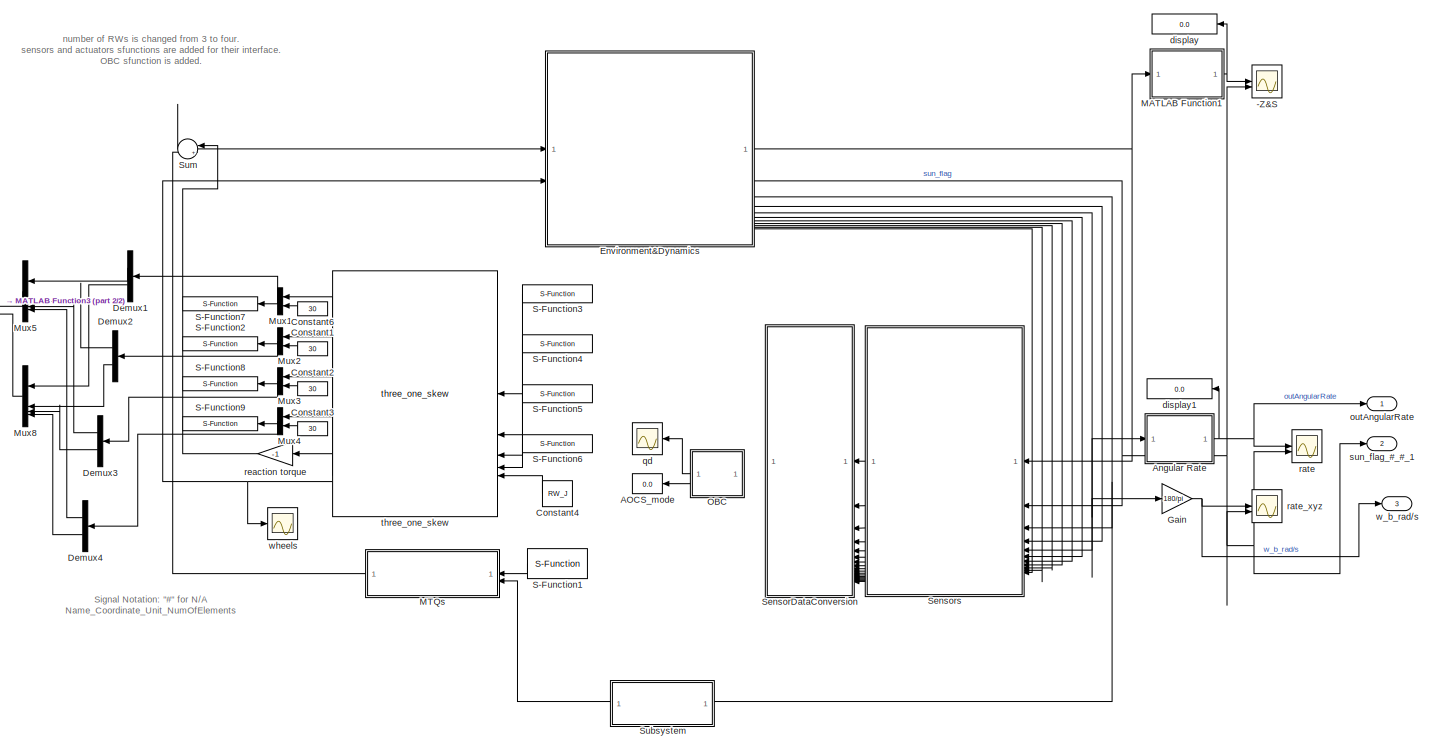
[diagram: root canvas - part 1/2, most of the canvas]
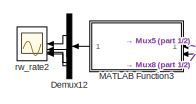
[diagram: root canvas - part 2/2, middle left region]
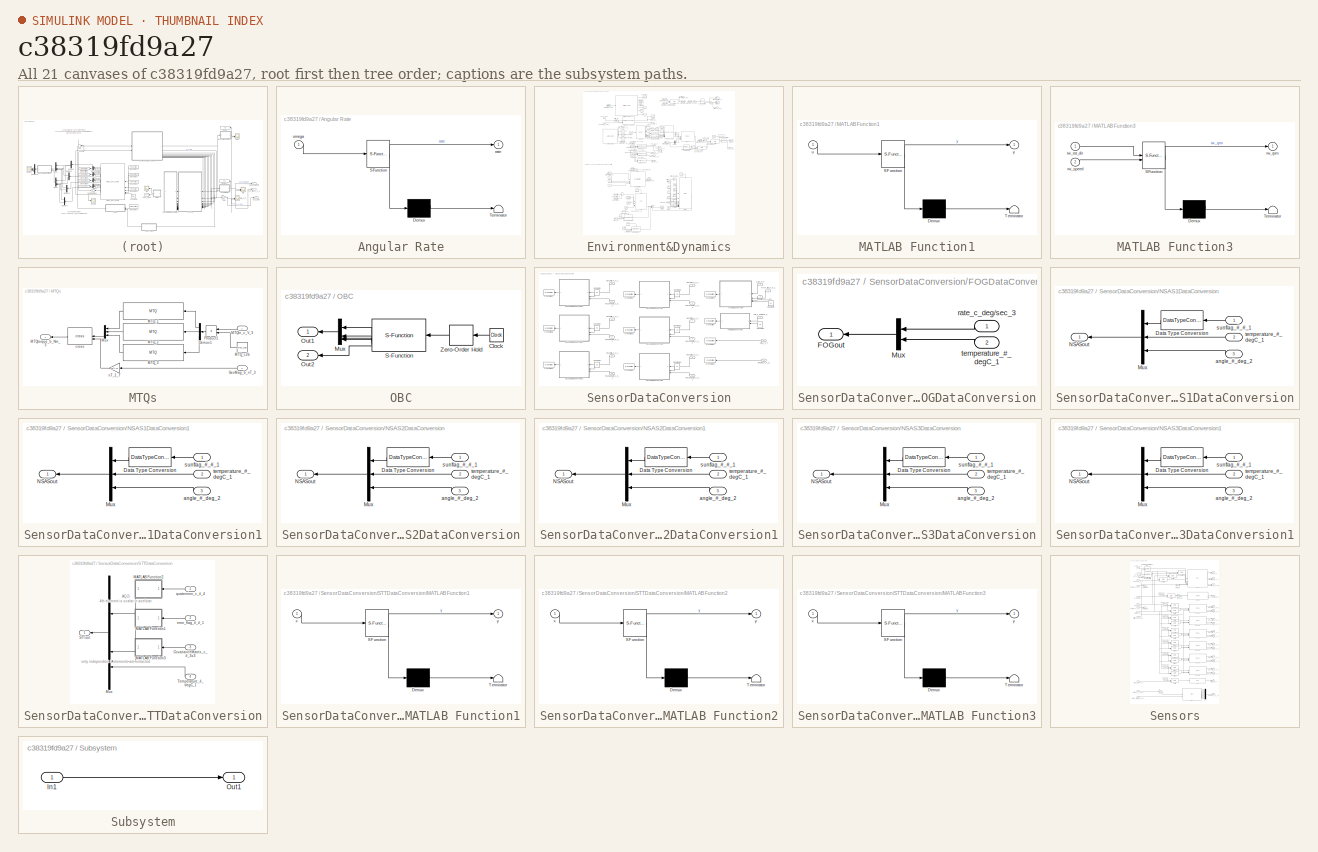
[diagram: thumbnail index - all 21 canvases of the model, root first then tree order]
MODEL mdl_c38319fd9a27
KIND model
CONFIG AbsTol = auto
CONFIG EnableMultiTasking = on
CONFIG FixedStep = sim_dt
CONFIG MaxStep = auto
CONFIG MinStep = auto
CONFIG PreLoadFcn = start\nmake_SILS\nparam_SW\nparam_sys\nparam_component\nparam_env\nparam_alignment\nOEread\ninitialCondition\n
CONFIG RelTol = 1e-3
CONFIG SampleTimeConstraint = Unconstrained
CONFIG SolverName = ode4
CONFIG StartTime = 0.0
CONFIG StopTime = 10000
BLOCK [Scope] -Z&S
  Floating = off
  NumInputPorts = 2
  ScopeSpecificationString = C++SS(StrPVP('Location','[33, 200, 738, 629]'),StrPVP('Open','off'),StrPVP('ZoomMode','yonly'),MxPVP('AxesTitles',54,'struct(''axes1'',''%<SignalLabel>'',''axes2'',''%<SignalLabel>'')'),MxPVP('ScopeGraphics',57,'struct(''FigureColor'',''[0.5 0.5 0.5]'',''AxesColor'',''[0 0 0]'',''AxesTickColor'',''[1 1 1]'',''LineColors'',''[1 1 0;1 0 1;0 1 1;1 0 0;0 1 0;0 0 1]'',''LineStyles'',''-|-|-|-|-|-'',''L...<+371ch>
BLOCK [Display] AOCS_mode
  Decimation = 1
BLOCK [SubSystem] Angular Rate
  ErrorFcn = Stateflow.Translate.translate
  PermitHierarchicalResolution = ExplicitOnly
  SFBlockType = MATLAB Function
  TreatAsAtomicUnit = on
BLOCK [Demux] Angular Rate/ Demux 
  Outputs = 1
BLOCK [S-Function] Angular Rate/ SFunction 
  EnableBusSupport = off
  FunctionName = sf_sfun
  PortCounts = [1 2]
  SFcnIsStateOwnerBlock = off
  SFunctionDeploymentMode = off
  Tag = Stateflow S-Function 6
BLOCK [Terminator] Angular Rate/ Terminator 
BLOCK [Inport] Angular Rate/omega
BLOCK [Outport] Angular Rate/rate
BLOCK [Constant] Constant1
  NameLocation = top
  Value = 30
BLOCK [Constant] Constant2
  NameLocation = top
  Value = 30
BLOCK [Constant] Constant3
  NameLocation = top
  Value = 30
BLOCK [Constant] Constant4
  NameLocation = top
  Value = RW_J
BLOCK [Constant] Constant6
  NameLocation = top
  Value = 30
BLOCK [Demux] Demux1
  Outputs = 8
BLOCK [Demux] Demux12
BLOCK [Demux] Demux2
  Outputs = 8
BLOCK [Demux] Demux3
  Outputs = 8
BLOCK [Demux] Demux4
  Outputs = 8
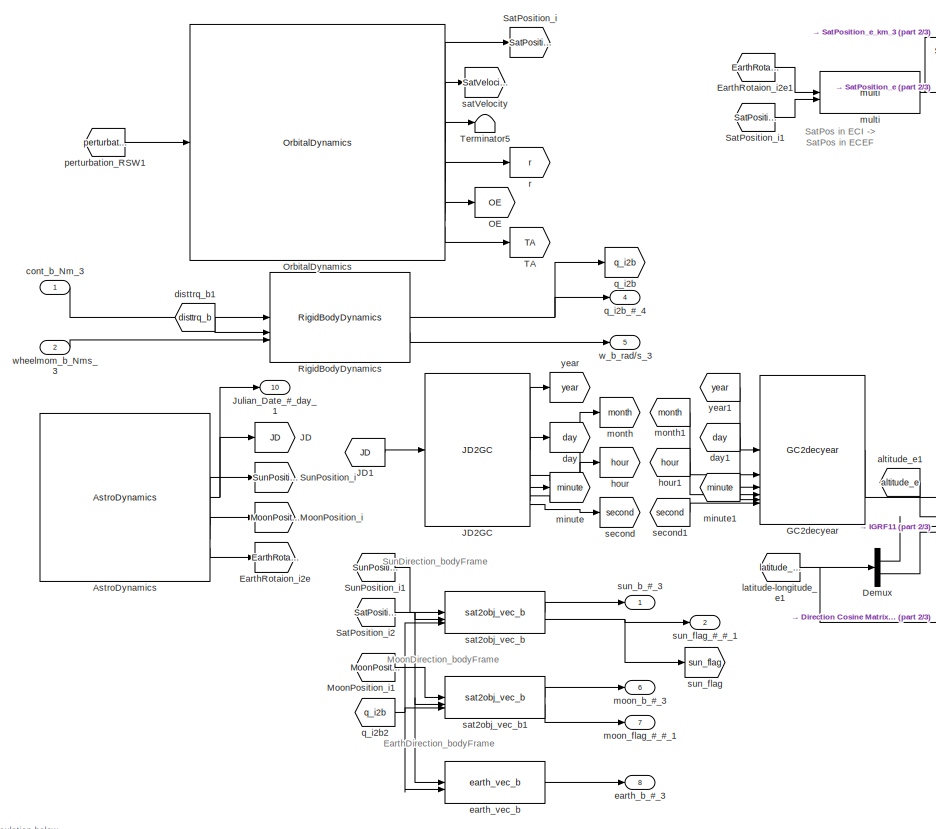
[diagram: Environment&Dynamics - part 1/3, top center region]
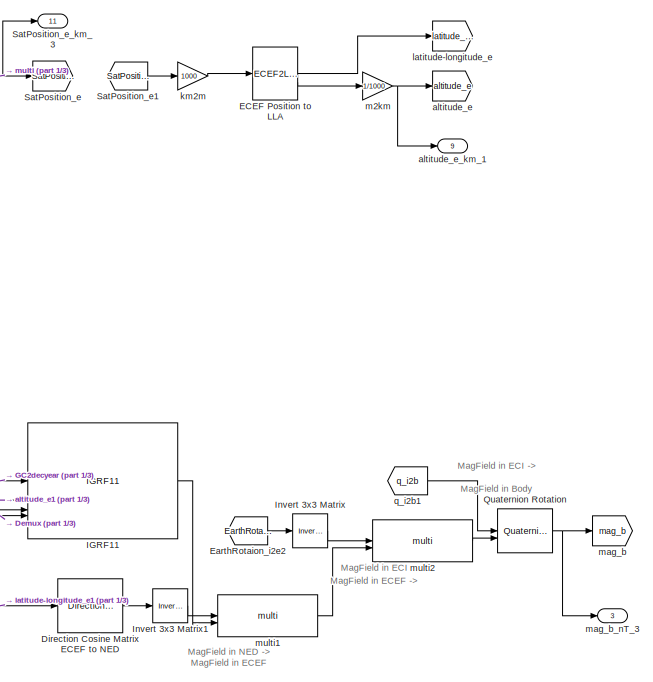
[diagram: Environment&Dynamics - part 2/3, top right region]
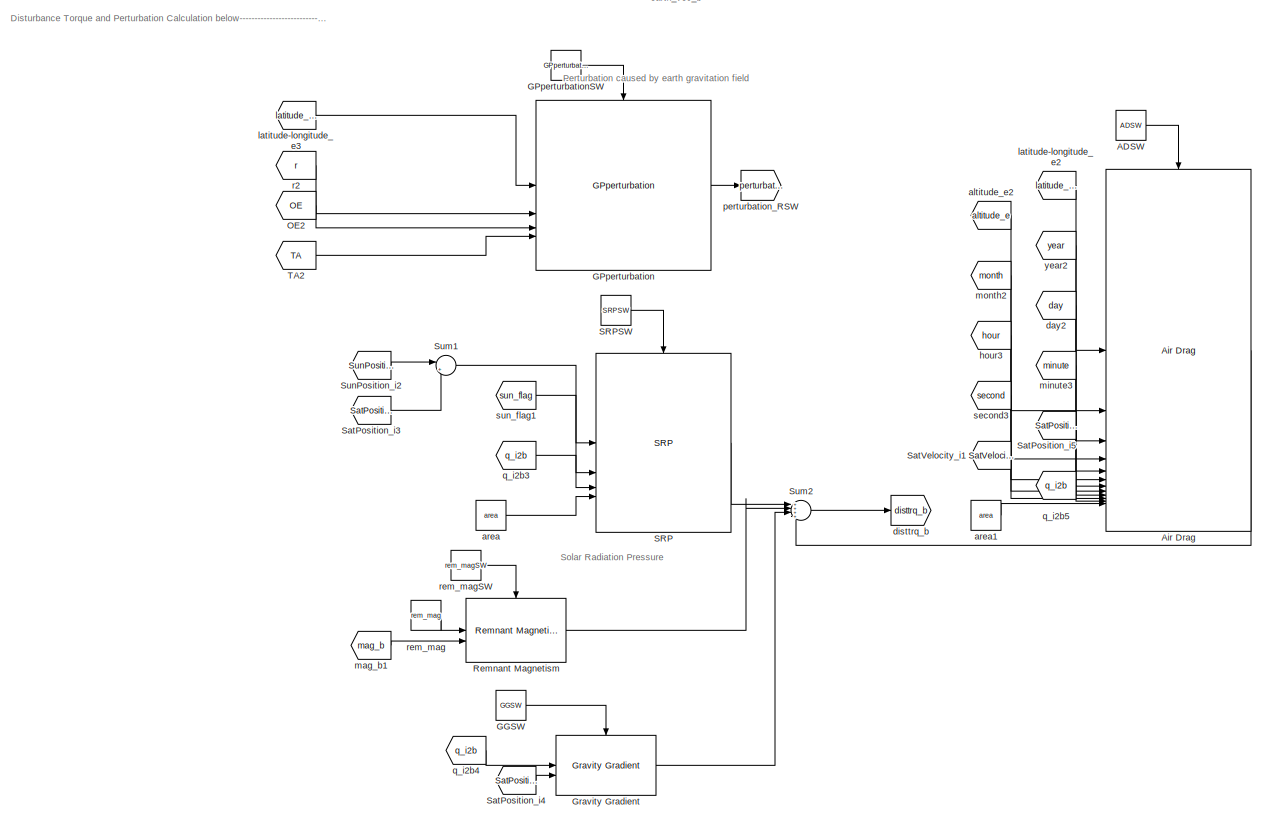
[diagram: Environment&Dynamics - part 3/3, bottom center region]
BLOCK [SubSystem] Environment&Dynamics
BLOCK [Constant] Environment&Dynamics/ADSW
  Value = ADSW
BLOCK [Reference] Environment&Dynamics/Air Drag  REF=lib_env/Environment&Dynamics/Air Drag  (lib defined in mdl_9d5cf06e00da)
  SourceBlock = lib_env/Environment&Dynamics/Air Drag
  SourceType = SubSystem
BLOCK [Reference] Environment&Dynamics/AstroDynamics  REF=lib_env/Environment&Dynamics/AstroDynamics  (lib defined in mdl_9d5cf06e00da)
  SourceBlock = lib_env/Environment&Dynamics/AstroDynamics
  SourceType = SubSystem
BLOCK [Demux] Environment&Dynamics/Demux
  Outputs = 2
BLOCK [Reference] Environment&Dynamics/Direction Cosine Matrix ECEF to NED  REF=aerolibtransform2/Direction Cosine Matrix
ECEF to NED
  SourceBlock = aerolibtransform2/Direction Cosine Matrix\nECEF to NED
  SourceType = DCM ECEF to NED
BLOCK [ECEF2LLA] Environment&Dynamics/ECEF Position to LLA
  R = 6378137
BLOCK [Goto] Environment&Dynamics/EarthRotaion_i2e
  GotoTag = EarthRotaion_i2e
BLOCK [From] Environment&Dynamics/EarthRotaion_i2e1
  GotoTag = EarthRotaion_i2e
BLOCK [From] Environment&Dynamics/EarthRotaion_i2e2
  GotoTag = EarthRotaion_i2e
BLOCK [Reference] Environment&Dynamics/GC2decyear  REF=lib_util/GC2decyear  (lib defined in mdl_263c60253fa7)
  SourceBlock = lib_util/GC2decyear
  SourceType = SubSystem
BLOCK [Constant] Environment&Dynamics/GGSW
  Value = GGSW
BLOCK [Reference] Environment&Dynamics/GPperturbation  REF=lib_env/Environment&Dynamics/GPperturbation  (lib defined in mdl_9d5cf06e00da)
  SourceBlock = lib_env/Environment&Dynamics/GPperturbation
  SourceType = SubSystem
BLOCK [Constant] Environment&Dynamics/GPperturbationSW
  Value = GPperturbationSW
BLOCK [Reference] Environment&Dynamics/Gravity Gradient  REF=lib_env/Environment&Dynamics/Gravity Gradient  (lib defined in mdl_9d5cf06e00da)
  SourceBlock = lib_env/Environment&Dynamics/Gravity Gradient
  SourceType = SubSystem
BLOCK [Reference] Environment&Dynamics/IGRF11  REF=lib_env/IGRF11  (lib defined in mdl_9d5cf06e00da)
  SourceBlock = lib_env/IGRF11
  SourceType = SubSystem
BLOCK [Reference] Environment&Dynamics/Invert 3x3 Matrix  REF=aerolibutil/Invert 
3x3 Matrix
  SourceBlock = aerolibutil/Invert \n3x3 Matrix
  SourceType = Invert 3x3 Matrix
BLOCK [Reference] Environment&Dynamics/Invert 3x3 Matrix1  REF=aerolibutil/Invert 
3x3 Matrix
  SourceBlock = aerolibutil/Invert \n3x3 Matrix
  SourceType = Invert 3x3 Matrix
BLOCK [Goto] Environment&Dynamics/JD
  GotoTag = JD
BLOCK [From] Environment&Dynamics/JD1
  GotoTag = JD
BLOCK [Reference] Environment&Dynamics/JD2GC  REF=lib_util/JD2GC  (lib defined in mdl_263c60253fa7)
  SourceBlock = lib_util/JD2GC
  SourceType = SubSystem
BLOCK [Outport] Environment&Dynamics/Julian_Date_#_day_1
  Port = 10
BLOCK [Goto] Environment&Dynamics/MoonPosition_i
  GotoTag = MoonPosition_i
BLOCK [From] Environment&Dynamics/MoonPosition_i1
  GotoTag = MoonPosition_i
BLOCK [Goto] Environment&Dynamics/OE
  GotoTag = OE
BLOCK [From] Environment&Dynamics/OE2
  GotoTag = OE
BLOCK [Reference] Environment&Dynamics/OrbitalDynamics  REF=lib_env/Environment&Dynamics/OrbitalDynamics  (lib defined in mdl_9d5cf06e00da)
  SourceBlock = lib_env/Environment&Dynamics/OrbitalDynamics
  SourceType = SubSystem
BLOCK [Reference] Environment&Dynamics/Quaternion Rotation  REF=aerolibutil/Quaternion
Rotation
  SourceBlock = aerolibutil/Quaternion\nRotation
  SourceType = Quaternion Rotation
BLOCK [Reference] Environment&Dynamics/Remnant Magnetism  REF=lib_env/Environment&Dynamics/Remnant Magnetism  (lib defined in mdl_9d5cf06e00da)
  SourceBlock = lib_env/Environment&Dynamics/Remnant Magnetism
  SourceType = SubSystem
BLOCK [Reference] Environment&Dynamics/RigidBodyDynamics  REF=lib_env/Environment&Dynamics/RigidBodyDynamics  (lib defined in mdl_9d5cf06e00da)
  SourceBlock = lib_env/Environment&Dynamics/RigidBodyDynamics
  SourceType = SubSystem
BLOCK [Reference] Environment&Dynamics/SRP  REF=lib_env/Environment&Dynamics/SRP  (lib defined in mdl_9d5cf06e00da)
  SourceBlock = lib_env/Environment&Dynamics/SRP
  SourceType = SubSystem
BLOCK [Constant] Environment&Dynamics/SRPSW
  Value = SRPSW
BLOCK [Goto] Environment&Dynamics/SatPosition_e
  GotoTag = SatPosition_e
BLOCK [From] Environment&Dynamics/SatPosition_e1
  GotoTag = SatPosition_e
BLOCK [Outport] Environment&Dynamics/SatPosition_e_km_3
  Port = 11
BLOCK [Goto] Environment&Dynamics/SatPosition_i
  GotoTag = SatPosition_i
BLOCK [From] Environment&Dynamics/SatPosition_i1
  GotoTag = SatPosition_i
BLOCK [From] Environment&Dynamics/SatPosition_i2
  GotoTag = SatPosition_i
BLOCK [From] Environment&Dynamics/SatPosition_i3
  GotoTag = SatPosition_i
BLOCK [From] Environment&Dynamics/SatPosition_i4
  GotoTag = SatPosition_i
BLOCK [From] Environment&Dynamics/SatPosition_i5
  GotoTag = SatPosition_i
BLOCK [From] Environment&Dynamics/SatVelocity_i1
  GotoTag = SatVelocity_i
BLOCK [Sum] Environment&Dynamics/Sum1
  Inputs = |+-
BLOCK [Sum] Environment&Dynamics/Sum2
  Inputs = ++++
BLOCK [Goto] Environment&Dynamics/SunPosition_i
  GotoTag = SunPosition_i
BLOCK [From] Environment&Dynamics/SunPosition_i1
  GotoTag = SunPosition_i
BLOCK [From] Environment&Dynamics/SunPosition_i2
  GotoTag = SunPosition_i
BLOCK [Goto] Environment&Dynamics/TA
  GotoTag = TA
BLOCK [From] Environment&Dynamics/TA2
  GotoTag = TA
BLOCK [Terminator] Environment&Dynamics/Terminator5
BLOCK [Goto] Environment&Dynamics/altitude_e
  GotoTag = altitude_e
BLOCK [From] Environment&Dynamics/altitude_e1
  GotoTag = altitude_e
BLOCK [From] Environment&Dynamics/altitude_e2
  GotoTag = altitude_e
BLOCK [Outport] Environment&Dynamics/altitude_e_km_1
  Port = 9
BLOCK [Constant] Environment&Dynamics/area
  Value = area
BLOCK [Constant] Environment&Dynamics/area1
  Value = area
BLOCK [Inport] Environment&Dynamics/cont_b_Nm_3
BLOCK [Goto] Environment&Dynamics/day
  GotoTag = day
BLOCK [From] Environment&Dynamics/day1
  GotoTag = day
BLOCK [From] Environment&Dynamics/day2
  GotoTag = day
BLOCK [Goto] Environment&Dynamics/disttrq_b
  GotoTag = disttrq_b
BLOCK [From] Environment&Dynamics/disttrq_b1
  GotoTag = disttrq_b
BLOCK [Outport] Environment&Dynamics/earth_b_#_3
  Port = 8
BLOCK [Reference] Environment&Dynamics/earth_vec_b  REF=lib_orbittrance/earth_vec_b  (lib defined in mdl_e1987a65d5b0)
  SourceBlock = lib_orbittrance/earth_vec_b
  SourceType = SubSystem
BLOCK [Goto] Environment&Dynamics/hour
  GotoTag = hour
BLOCK [From] Environment&Dynamics/hour1
  GotoTag = hour
BLOCK [From] Environment&Dynamics/hour3
  GotoTag = hour
BLOCK [Gain] Environment&Dynamics/km2m
  Gain = 1000
BLOCK [Goto] Environment&Dynamics/latitude-longitude_e
  GotoTag = latitude_longitude_e
BLOCK [From] Environment&Dynamics/latitude-longitude_e1
  GotoTag = latitude_longitude_e
BLOCK [From] Environment&Dynamics/latitude-longitude_e2
  GotoTag = latitude_longitude_e
BLOCK [From] Environment&Dynamics/latitude-longitude_e3
  GotoTag = latitude_longitude_e
BLOCK [Gain] Environment&Dynamics/m2km
  Gain = 1/1000
BLOCK [Goto] Environment&Dynamics/mag_b
  GotoTag = mag_b
BLOCK [From] Environment&Dynamics/mag_b1
  GotoTag = mag_b
BLOCK [Outport] Environment&Dynamics/mag_b_nT_3
  Port = 3
BLOCK [Goto] Environment&Dynamics/minute
  GotoTag = minute
BLOCK [From] Environment&Dynamics/minute1
  GotoTag = minute
BLOCK [From] Environment&Dynamics/minute3
  GotoTag = minute
BLOCK [Goto] Environment&Dynamics/month
  GotoTag = month
BLOCK [From] Environment&Dynamics/month1
  GotoTag = month
BLOCK [From] Environment&Dynamics/month2
  GotoTag = month
BLOCK [Outport] Environment&Dynamics/moon_b_#_3
  Port = 6
BLOCK [Outport] Environment&Dynamics/moon_flag_#_#_1
  Port = 7
BLOCK [Reference] Environment&Dynamics/multi  REF=lib_util/multi  (lib defined in mdl_263c60253fa7)
  SourceBlock = lib_util/multi
  SourceType = SubSystem
BLOCK [Reference] Environment&Dynamics/multi1  REF=lib_util/multi  (lib defined in mdl_263c60253fa7)
  SourceBlock = lib_util/multi
  SourceType = SubSystem
BLOCK [Reference] Environment&Dynamics/multi2  REF=lib_util/multi  (lib defined in mdl_263c60253fa7)
  SourceBlock = lib_util/multi
  SourceType = SubSystem
BLOCK [Goto] Environment&Dynamics/perturbation_RSW
  GotoTag = perturbation_RSW
BLOCK [From] Environment&Dynamics/perturbation_RSW1
  GotoTag = perturbation_RSW
BLOCK [Goto] Environment&Dynamics/q_i2b
  GotoTag = q_i2b
BLOCK [From] Environment&Dynamics/q_i2b1
  GotoTag = q_i2b
BLOCK [From] Environment&Dynamics/q_i2b2
  GotoTag = q_i2b
BLOCK [From] Environment&Dynamics/q_i2b3
  GotoTag = q_i2b
BLOCK [From] Environment&Dynamics/q_i2b4
  GotoTag = q_i2b
BLOCK [From] Environment&Dynamics/q_i2b5
  GotoTag = q_i2b
BLOCK [Outport] Environment&Dynamics/q_i2b_#_4
  Port = 4
BLOCK [Goto] Environment&Dynamics/r
  GotoTag = r
BLOCK [From] Environment&Dynamics/r2
  GotoTag = r
BLOCK [Constant] Environment&Dynamics/rem_mag
  Value = rem_mag
BLOCK [Constant] Environment&Dynamics/rem_magSW
  Value = rem_magSW
BLOCK [Reference] Environment&Dynamics/sat2obj_vec_b  REF=lib_orbittrance/sat2obj_vec_b  (lib defined in mdl_e1987a65d5b0)
  SourceBlock = lib_orbittrance/sat2obj_vec_b
  SourceType = SubSystem
BLOCK [Reference] Environment&Dynamics/sat2obj_vec_b1  REF=lib_orbittrance/sat2obj_vec_b  (lib defined in mdl_e1987a65d5b0)
  SourceBlock = lib_orbittrance/sat2obj_vec_b
  SourceType = SubSystem
BLOCK [Goto] Environment&Dynamics/satVelocity
  GotoTag = SatVelocity_i
BLOCK [Goto] Environment&Dynamics/second
  GotoTag = second
BLOCK [From] Environment&Dynamics/second1
  GotoTag = second
BLOCK [From] Environment&Dynamics/second3
  GotoTag = second
BLOCK [Outport] Environment&Dynamics/sun_b_#_3
BLOCK [Goto] Environment&Dynamics/sun_flag
  GotoTag = sun_flag
BLOCK [From] Environment&Dynamics/sun_flag1
  GotoTag = sun_flag
BLOCK [Outport] Environment&Dynamics/sun_flag_#_#_1
  Port = 2
BLOCK [Outport] Environment&Dynamics/w_b_rad//s_3
  Port = 5
BLOCK [Inport] Environment&Dynamics/wheelmom_b_Nms_3
  Port = 2
BLOCK [Goto] Environment&Dynamics/year
  GotoTag = year
BLOCK [From] Environment&Dynamics/year1
  GotoTag = year
BLOCK [From] Environment&Dynamics/year2
  GotoTag = year
BLOCK [Gain] Gain
  Gain = 180/pi
BLOCK [SubSystem] MATLAB Function1
  ErrorFcn = Stateflow.Translate.translate
  PermitHierarchicalResolution = ExplicitOnly
  SFBlockType = MATLAB Function
  TreatAsAtomicUnit = on
BLOCK [Demux] MATLAB Function1/ Demux 
  Outputs = 1
BLOCK [S-Function] MATLAB Function1/ SFunction 
  EnableBusSupport = off
  FunctionName = sf_sfun
  PortCounts = [1 2]
  SFcnIsStateOwnerBlock = off
  SFunctionDeploymentMode = off
  Tag = Stateflow S-Function 28
BLOCK [Terminator] MATLAB Function1/ Terminator 
BLOCK [Inport] MATLAB Function1/u
BLOCK [Outport] MATLAB Function1/y
BLOCK [SubSystem] MATLAB Function3
  ErrorFcn = Stateflow.Translate.translate
  PermitHierarchicalResolution = ExplicitOnly
  SFBlockType = MATLAB Function
  TreatAsAtomicUnit = on
BLOCK [Demux] MATLAB Function3/ Demux 
  Outputs = 1
BLOCK [S-Function] MATLAB Function3/ SFunction 
  EnableBusSupport = off
  FunctionName = sf_sfun
  PortCounts = [2 2]
  SFcnIsStateOwnerBlock = off
  SFunctionDeploymentMode = off
  Tag = Stateflow S-Function 2
BLOCK [Terminator] MATLAB Function3/ Terminator 
BLOCK [Inport] MATLAB Function3/rw_rot_dir
BLOCK [Outport] MATLAB Function3/rw_rpm
BLOCK [Inport] MATLAB Function3/rw_speed
  Port = 2
BLOCK [SubSystem] MTQs
BLOCK [Demux] MTQs/Demux1
  Outputs = 3
BLOCK [Inport] MTQs/GeoMag_b_nT_3
  Port = 2
BLOCK [Reference] MTQs/MTQ_1  REF=lib_component/MTQ  (lib defined in mdl_fb77b1e06893)
  SourceBlock = lib_component/MTQ
  SourceType = SubSystem
BLOCK [Reference] MTQs/MTQ_2  REF=lib_component/MTQ  (lib defined in mdl_fb77b1e06893)
  SourceBlock = lib_component/MTQ
  SourceType = SubSystem
BLOCK [Reference] MTQs/MTQ_3  REF=lib_component/MTQ  (lib defined in mdl_fb77b1e06893)
  SourceBlock = lib_component/MTQ
  SourceType = SubSystem
BLOCK [Constant] MTQs/MTQ_c2b
  Value = MTQ_c2b
BLOCK [Inport] MTQs/MTQin_c_V_3
BLOCK [Outport] MTQs/MTQtorque_b_Nm_3
BLOCK [Mux] MTQs/Mux
  DisplayOption = bar
  Inputs = 3
BLOCK [Product] MTQs/Product1
  NameLocation = top
  RndMeth = Zero
BLOCK [Reference] MTQs/cross  REF=lib_util/cross  (lib defined in mdl_263c60253fa7)
  SourceBlock = lib_util/cross
  SourceType = SubSystem
BLOCK [Gain] MTQs/nT_2_T
  Gain = 10^(-9)
BLOCK [Mux] Mux1
  DisplayOption = bar
  Inputs = 2
  NameLocation = top
BLOCK [Mux] Mux2
  DisplayOption = bar
  Inputs = 2
  NameLocation = top
BLOCK [Mux] Mux3
  DisplayOption = bar
  Inputs = 2
  NameLocation = top
BLOCK [Mux] Mux4
  DisplayOption = bar
  Inputs = 2
  NameLocation = top
BLOCK [Mux] Mux5
  DisplayOption = bar
  NameLocation = top
BLOCK [Mux] Mux8
  DisplayOption = bar
  NameLocation = top
BLOCK [SubSystem] OBC
  NameLocation = top
BLOCK [Clock] OBC/Clock
  NameLocation = top
BLOCK [Mux] OBC/Mux
  DisplayOption = bar
  NameLocation = top
BLOCK [Outport] OBC/Out1
BLOCK [Outport] OBC/Out2
  Port = 2
BLOCK [S-Function] OBC/S-Function
  EnableBusSupport = off
  FunctionName = sfunc_AOBC
  NameLocation = top
  SFcnIsStateOwnerBlock = off
  SFunctionDeploymentMode = off
BLOCK [ZeroOrderHold] OBC/Zero-Order Hold
  NameLocation = top
  SampleTime = AOBC_dt
BLOCK [S-Function] S-Function1
  EnableBusSupport = off
  FunctionName = sfunc_MTQ
  NameLocation = top
  Parameters = 0
  SFcnIsStateOwnerBlock = off
  SFunctionDeploymentMode = off
BLOCK [S-Function] S-Function2
  EnableBusSupport = off
  FunctionName = sfunc_RW_RX
  NameLocation = top
  Parameters = 1
  SFcnIsStateOwnerBlock = off
  SFunctionDeploymentMode = off
BLOCK [S-Function] S-Function3
  EnableBusSupport = off
  FunctionName = sfunc_RW_TX
  NameLocation = top
  Parameters = 0
  SFcnIsStateOwnerBlock = off
  SFunctionDeploymentMode = off
BLOCK [S-Function] S-Function4
  EnableBusSupport = off
  FunctionName = sfunc_RW_TX
  NameLocation = top
  Parameters = 1
  SFcnIsStateOwnerBlock = off
  SFunctionDeploymentMode = off
BLOCK [S-Function] S-Function5
  EnableBusSupport = off
  FunctionName = sfunc_RW_TX
  NameLocation = top
  Parameters = 2
  SFcnIsStateOwnerBlock = off
  SFunctionDeploymentMode = off
BLOCK [S-Function] S-Function6
  EnableBusSupport = off
  FunctionName = sfunc_RW_TX
  NameLocation = top
  Parameters = 3
  SFcnIsStateOwnerBlock = off
  SFunctionDeploymentMode = off
BLOCK [S-Function] S-Function7
  EnableBusSupport = off
  FunctionName = sfunc_RW_RX
  NameLocation = top
  Parameters = 0
  SFcnIsStateOwnerBlock = off
  SFunctionDeploymentMode = off
BLOCK [S-Function] S-Function8
  EnableBusSupport = off
  FunctionName = sfunc_RW_RX
  NameLocation = top
  Parameters = 2
  SFcnIsStateOwnerBlock = off
  SFunctionDeploymentMode = off
BLOCK [S-Function] S-Function9
  EnableBusSupport = off
  FunctionName = sfunc_RW_RX
  NameLocation = top
  Parameters = 3
  SFcnIsStateOwnerBlock = off
  SFunctionDeploymentMode = off
BLOCK [SubSystem] SensorDataConversion
BLOCK [Constant] SensorDataConversion/Constant1
  NameLocation = top
  Value = 20
BLOCK [Constant] SensorDataConversion/Constant12
  NameLocation = top
  Value = 20
BLOCK [Constant] SensorDataConversion/Constant15
  NameLocation = top
  Value = 10
BLOCK [Constant] SensorDataConversion/Constant2
  NameLocation = top
  Value = 30
BLOCK [Constant] SensorDataConversion/Constant3
  NameLocation = top
  Value = 10
BLOCK [Constant] SensorDataConversion/Constant4
  NameLocation = top
  Value = 30
BLOCK [Constant] SensorDataConversion/Constant5
  SampleTime = 0
  Value = 30
BLOCK [Constant] SensorDataConversion/Constant6
  NameLocation = top
  Value = 30
BLOCK [Inport] SensorDataConversion/CovMtrx_#_#_3x3
  Port = 3
BLOCK [SubSystem] SensorDataConversion/FOGDataConversion
BLOCK [Outport] SensorDataConversion/FOGDataConversion/FOGout
BLOCK [Mux] SensorDataConversion/FOGDataConversion/Mux
  DisplayOption = bar
  Inputs = 2
  NameLocation = top
BLOCK [Inport] SensorDataConversion/FOGDataConversion/rate_c_deg//sec_3
  NameLocation = top
BLOCK [Inport] SensorDataConversion/FOGDataConversion/temperature_#_degC_1
  Port = 2
BLOCK [Inport] SensorDataConversion/GPSout_#_#_12
  Port = 18
BLOCK [SubSystem] SensorDataConversion/NSAS1DataConversion
BLOCK [DataTypeConversion] SensorDataConversion/NSAS1DataConversion/Data Type Conversion
  NameLocation = top
  OutDataTypeStr = double
  RndMeth = Floor
  SaturateOnIntegerOverflow = off
BLOCK [Mux] SensorDataConversion/NSAS1DataConversion/Mux
  DisplayOption = bar
  Inputs = 3
  NameLocation = top
BLOCK [Outport] SensorDataConversion/NSAS1DataConversion/NSASout
BLOCK [Inport] SensorDataConversion/NSAS1DataConversion/angle_#_deg_2
  Port = 3
BLOCK [Inport] SensorDataConversion/NSAS1DataConversion/sunflag_#_#_1
BLOCK [Inport] SensorDataConversion/NSAS1DataConversion/temperature_#_degC_1
  Port = 2
BLOCK [SubSystem] SensorDataConversion/NSAS1DataConversion1
BLOCK [DataTypeConversion] SensorDataConversion/NSAS1DataConversion1/Data Type Conversion
  NameLocation = top
  OutDataTypeStr = double
  RndMeth = Floor
  SaturateOnIntegerOverflow = off
BLOCK [Mux] SensorDataConversion/NSAS1DataConversion1/Mux
  DisplayOption = bar
  Inputs = 3
  NameLocation = top
BLOCK [Outport] SensorDataConversion/NSAS1DataConversion1/NSASout
BLOCK [Inport] SensorDataConversion/NSAS1DataConversion1/angle_#_deg_2
  Port = 3
BLOCK [Inport] SensorDataConversion/NSAS1DataConversion1/sunflag_#_#_1
BLOCK [Inport] SensorDataConversion/NSAS1DataConversion1/temperature_#_degC_1
  Port = 2
BLOCK [Inport] SensorDataConversion/NSAS1angle_c_#_2
  Port = 6
BLOCK [Inport] SensorDataConversion/NSAS1flg_#_#_1
  Port = 5
BLOCK [SubSystem] SensorDataConversion/NSAS2DataConversion
BLOCK [DataTypeConversion] SensorDataConversion/NSAS2DataConversion/Data Type Conversion
  NameLocation = top
  OutDataTypeStr = double
  RndMeth = Floor
  SaturateOnIntegerOverflow = off
BLOCK [Mux] SensorDataConversion/NSAS2DataConversion/Mux
  DisplayOption = bar
  Inputs = 3
  NameLocation = top
BLOCK [Outport] SensorDataConversion/NSAS2DataConversion/NSASout
BLOCK [Inport] SensorDataConversion/NSAS2DataConversion/angle_#_deg_2
  Port = 3
BLOCK [Inport] SensorDataConversion/NSAS2DataConversion/sunflag_#_#_1
BLOCK [Inport] SensorDataConversion/NSAS2DataConversion/temperature_#_degC_1
  Port = 2
BLOCK [SubSystem] SensorDataConversion/NSAS2DataConversion1
BLOCK [DataTypeConversion] SensorDataConversion/NSAS2DataConversion1/Data Type Conversion
  NameLocation = top
  OutDataTypeStr = double
  RndMeth = Floor
  SaturateOnIntegerOverflow = off
BLOCK [Mux] SensorDataConversion/NSAS2DataConversion1/Mux
  DisplayOption = bar
  Inputs = 3
  NameLocation = top
BLOCK [Outport] SensorDataConversion/NSAS2DataConversion1/NSASout
BLOCK [Inport] SensorDataConversion/NSAS2DataConversion1/angle_#_deg_2
  Port = 3
BLOCK [Inport] SensorDataConversion/NSAS2DataConversion1/sunflag_#_#_1
BLOCK [Inport] SensorDataConversion/NSAS2DataConversion1/temperature_#_degC_1
  Port = 2
BLOCK [Inport] SensorDataConversion/NSAS2angle_c_#_2
  Port = 8
BLOCK [Inport] SensorDataConversion/NSAS2flg_#_#_1
  Port = 7
BLOCK [SubSystem] SensorDataConversion/NSAS3DataConversion
BLOCK [DataTypeConversion] SensorDataConversion/NSAS3DataConversion/Data Type Conversion
  NameLocation = top
  OutDataTypeStr = double
  RndMeth = Floor
  SaturateOnIntegerOverflow = off
BLOCK [Mux] SensorDataConversion/NSAS3DataConversion/Mux
  DisplayOption = bar
  Inputs = 3
  NameLocation = top
BLOCK [Outport] SensorDataConversion/NSAS3DataConversion/NSASout
BLOCK [Inport] SensorDataConversion/NSAS3DataConversion/angle_#_deg_2
  Port = 3
BLOCK [Inport] SensorDataConversion/NSAS3DataConversion/sunflag_#_#_1
BLOCK [Inport] SensorDataConversion/NSAS3DataConversion/temperature_#_degC_1
  Port = 2
BLOCK [SubSystem] SensorDataConversion/NSAS3DataConversion1
BLOCK [DataTypeConversion] SensorDataConversion/NSAS3DataConversion1/Data Type Conversion
  NameLocation = top
  OutDataTypeStr = double
  RndMeth = Floor
  SaturateOnIntegerOverflow = off
BLOCK [Mux] SensorDataConversion/NSAS3DataConversion1/Mux
  DisplayOption = bar
  Inputs = 3
  NameLocation = top
BLOCK [Outport] SensorDataConversion/NSAS3DataConversion1/NSASout
BLOCK [Inport] SensorDataConversion/NSAS3DataConversion1/angle_#_deg_2
  Port = 3
BLOCK [Inport] SensorDataConversion/NSAS3DataConversion1/sunflag_#_#_1
BLOCK [Inport] SensorDataConversion/NSAS3DataConversion1/temperature_#_degC_1
  Port = 2
BLOCK [Inport] SensorDataConversion/NSAS3angle_c_#_2
  Port = 10
BLOCK [Inport] SensorDataConversion/NSAS3flg_#_#_1
  Port = 9
BLOCK [Inport] SensorDataConversion/NSAS4angle_c_#_2
  Port = 12
BLOCK [Inport] SensorDataConversion/NSAS4flg_#_#_1
  Port = 11
BLOCK [Inport] SensorDataConversion/NSAS5angle_c_#_2
  Port = 14
BLOCK [Inport] SensorDataConversion/NSAS5flg_#_#_1
  Port = 13
BLOCK [Inport] SensorDataConversion/NSAS6angle_c_#_2
  Port = 16
BLOCK [Inport] SensorDataConversion/NSAS6flg_#_#_1
  Port = 15
BLOCK [S-Function] SensorDataConversion/S-Function
  EnableBusSupport = off
  FunctionName = sfunc_FOG
  NameLocation = top
  Parameters = 0 2
  SFcnIsStateOwnerBlock = off
  SFunctionDeploymentMode = off
BLOCK [S-Function] SensorDataConversion/S-Function1
  EnableBusSupport = off
  FunctionName = sfunc_GAS
  NameLocation = top
  Parameters = 0
  SFcnIsStateOwnerBlock = off
  SFunctionDeploymentMode = off
BLOCK [S-Function] SensorDataConversion/S-Function2
  EnableBusSupport = off
  FunctionName = sfunc_NSAS
  NameLocation = top
  Parameters = 0 0
  SFcnIsStateOwnerBlock = off
  SFunctionDeploymentMode = off
BLOCK [S-Function] SensorDataConversion/S-Function3
  EnableBusSupport = off
  FunctionName = sfunc_NSAS
  NameLocation = top
  Parameters = 1 1
  SFcnIsStateOwnerBlock = off
  SFunctionDeploymentMode = off
BLOCK [S-Function] SensorDataConversion/S-Function4
  EnableBusSupport = off
  FunctionName = sfunc_NSAS
  NameLocation = top
  Parameters = 2 2
  SFcnIsStateOwnerBlock = off
  SFunctionDeploymentMode = off
BLOCK [S-Function] SensorDataConversion/S-Function5
  EnableBusSupport = off
  FunctionName = sfunc_GPS
  NameLocation = top
  Parameters = 0
  SFcnIsStateOwnerBlock = off
  SFunctionDeploymentMode = off
BLOCK [S-Function] SensorDataConversion/S-Function6
  EnableBusSupport = off
  FunctionName = sfunc_STT
  NameLocation = top
  Parameters = 0 1
  SFcnIsStateOwnerBlock = off
  SFunctionDeploymentMode = off
BLOCK [S-Function] SensorDataConversion/S-Function7
  EnableBusSupport = off
  FunctionName = sfunc_NSAS
  NameLocation = top
  Parameters = 3 3
  SFcnIsStateOwnerBlock = off
  SFunctionDeploymentMode = off
BLOCK [S-Function] SensorDataConversion/S-Function8
  EnableBusSupport = off
  FunctionName = sfunc_NSAS
  NameLocation = top
  Parameters = 4 4
  SFcnIsStateOwnerBlock = off
  SFunctionDeploymentMode = off
BLOCK [S-Function] SensorDataConversion/S-Function9
  EnableBusSupport = off
  FunctionName = sfunc_NSAS
  NameLocation = top
  Parameters = 5 5
  SFcnIsStateOwnerBlock = off
  SFunctionDeploymentMode = off
BLOCK [SubSystem] SensorDataConversion/STTDataConversion
BLOCK [Inport] SensorDataConversion/STTDataConversion/CovarianceMatrix_c_#_3x3
  Port = 3
BLOCK [SubSystem] SensorDataConversion/STTDataConversion/MATLAB Function1
  ErrorFcn = Stateflow.Translate.translate
  NameLocation = top
  PermitHierarchicalResolution = ExplicitOnly
  SFBlockType = MATLAB Function
  TreatAsAtomicUnit = on
BLOCK [Demux] SensorDataConversion/STTDataConversion/MATLAB Function1/ Demux 
  Outputs = 1
BLOCK [S-Function] SensorDataConversion/STTDataConversion/MATLAB Function1/ SFunction 
  EnableBusSupport = off
  FunctionName = sf_sfun
  PortCounts = [1 2]
  SFcnIsStateOwnerBlock = off
  SFunctionDeploymentMode = off
  Tag = Stateflow S-Function 8
BLOCK [Terminator] SensorDataConversion/STTDataConversion/MATLAB Function1/ Terminator 
BLOCK [Inport] SensorDataConversion/STTDataConversion/MATLAB Function1/x
BLOCK [Outport] SensorDataConversion/STTDataConversion/MATLAB Function1/y
BLOCK [SubSystem] SensorDataConversion/STTDataConversion/MATLAB Function2
  ErrorFcn = Stateflow.Translate.translate
  NameLocation = top
  PermitHierarchicalResolution = ExplicitOnly
  SFBlockType = MATLAB Function
  TreatAsAtomicUnit = on
BLOCK [Demux] SensorDataConversion/STTDataConversion/MATLAB Function2/ Demux 
  Outputs = 1
BLOCK [S-Function] SensorDataConversion/STTDataConversion/MATLAB Function2/ SFunction 
  EnableBusSupport = off
  FunctionName = sf_sfun
  PortCounts = [1 2]
  SFcnIsStateOwnerBlock = off
  SFunctionDeploymentMode = off
  Tag = Stateflow S-Function 12
BLOCK [Terminator] SensorDataConversion/STTDataConversion/MATLAB Function2/ Terminator 
BLOCK [Inport] SensorDataConversion/STTDataConversion/MATLAB Function2/x
BLOCK [Outport] SensorDataConversion/STTDataConversion/MATLAB Function2/y
BLOCK [SubSystem] SensorDataConversion/STTDataConversion/MATLAB Function3
  ErrorFcn = Stateflow.Translate.translate
  NameLocation = top
  PermitHierarchicalResolution = ExplicitOnly
  SFBlockType = MATLAB Function
  TreatAsAtomicUnit = on
BLOCK [Demux] SensorDataConversion/STTDataConversion/MATLAB Function3/ Demux 
  Outputs = 1
BLOCK [S-Function] SensorDataConversion/STTDataConversion/MATLAB Function3/ SFunction 
  EnableBusSupport = off
  FunctionName = sf_sfun
  PortCounts = [1 2]
  SFcnIsStateOwnerBlock = off
  SFunctionDeploymentMode = off
  Tag = Stateflow S-Function 1
BLOCK [Terminator] SensorDataConversion/STTDataConversion/MATLAB Function3/ Terminator 
BLOCK [Inport] SensorDataConversion/STTDataConversion/MATLAB Function3/x
BLOCK [Outport] SensorDataConversion/STTDataConversion/MATLAB Function3/y
BLOCK [Mux] SensorDataConversion/STTDataConversion/Mux
  DisplayOption = bar
  NameLocation = top
BLOCK [Outport] SensorDataConversion/STTDataConversion/STTout
BLOCK [Inport] SensorDataConversion/STTDataConversion/Temperature_#_degC_1
  Port = 4
BLOCK [Inport] SensorDataConversion/STTDataConversion/error_flag_#_#_1
  Port = 2
BLOCK [Inport] SensorDataConversion/STTDataConversion/quaternion_c_#_4
BLOCK [Inport] SensorDataConversion/Volt_#_V_4
  Port = 17
BLOCK [Inport] SensorDataConversion/error_flag_#_#_1
  Port = 2
BLOCK [Inport] SensorDataConversion/q_i2c_#_4
BLOCK [Inport] SensorDataConversion/rate_c_deg//sec_3
  Port = 4
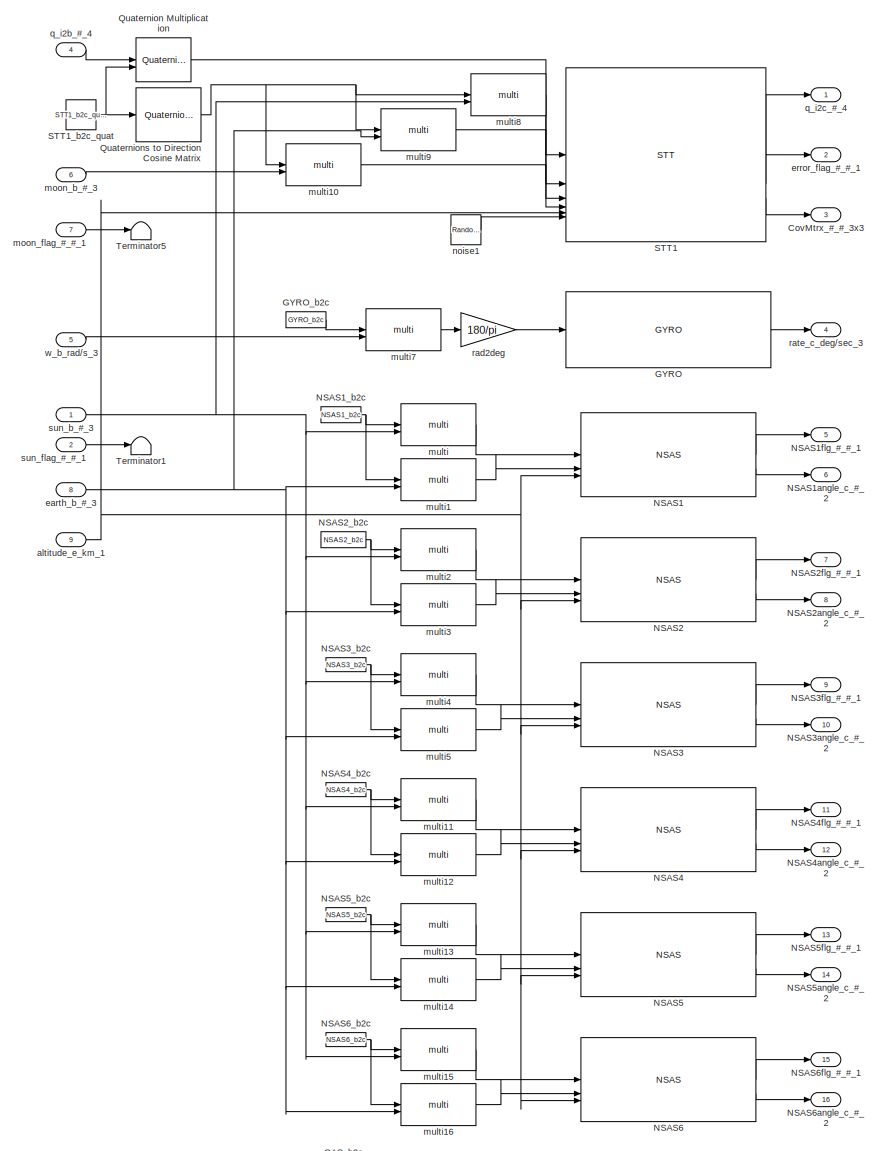
[diagram: Sensors - part 1/2, most of the canvas]
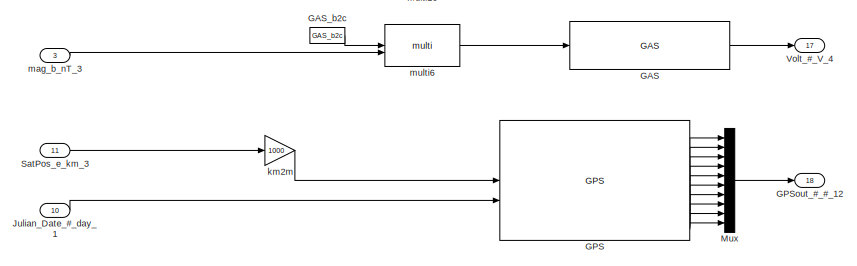
[diagram: Sensors - part 2/2, full width, bottom band]
BLOCK [SubSystem] Sensors
BLOCK [Outport] Sensors/CovMtrx_#_#_3x3
  Port = 3
BLOCK [Reference] Sensors/GAS  REF=lib_component/GAS  (lib defined in mdl_fb77b1e06893)
  SourceBlock = lib_component/GAS
  SourceType = SubSystem
BLOCK [Constant] Sensors/GAS_b2c
  NameLocation = top
  Value = GAS_b2c
  VectorParams1D = off
BLOCK [Reference] Sensors/GPS  REF=lib_component/GPS  (lib defined in mdl_fb77b1e06893)
  SourceBlock = lib_component/GPS
  SourceType = SubSystem
BLOCK [Outport] Sensors/GPSout_#_#_12
  Port = 18
BLOCK [Reference] Sensors/GYRO  REF=lib_component/GYRO  (lib defined in mdl_fb77b1e06893)
  SourceBlock = lib_component/GYRO
  SourceType = SubSystem
BLOCK [Constant] Sensors/GYRO_b2c
  NameLocation = top
  Value = GYRO_b2c
  VectorParams1D = off
BLOCK [Inport] Sensors/Julian_Date_#_day_1
  Port = 10
BLOCK [Mux] Sensors/Mux
  DisplayOption = bar
  Inputs = 10
BLOCK [Reference] Sensors/NSAS1  REF=lib_component/NSAS  (lib defined in mdl_fb77b1e06893)
  SourceBlock = lib_component/NSAS
  SourceType = SubSystem
BLOCK [Constant] Sensors/NSAS1_b2c
  NameLocation = top
  Value = NSAS1_b2c
  VectorParams1D = off
BLOCK [Outport] Sensors/NSAS1angle_c_#_2
  Port = 6
BLOCK [Outport] Sensors/NSAS1flg_#_#_1
  Port = 5
BLOCK [Reference] Sensors/NSAS2  REF=lib_component/NSAS  (lib defined in mdl_fb77b1e06893)
  SourceBlock = lib_component/NSAS
  SourceType = SubSystem
BLOCK [Constant] Sensors/NSAS2_b2c
  NameLocation = top
  Value = NSAS2_b2c
  VectorParams1D = off
BLOCK [Outport] Sensors/NSAS2angle_c_#_2
  Port = 8
BLOCK [Outport] Sensors/NSAS2flg_#_#_1
  Port = 7
BLOCK [Reference] Sensors/NSAS3  REF=lib_component/NSAS  (lib defined in mdl_fb77b1e06893)
  SourceBlock = lib_component/NSAS
  SourceType = SubSystem
BLOCK [Constant] Sensors/NSAS3_b2c
  NameLocation = top
  Value = NSAS3_b2c
  VectorParams1D = off
BLOCK [Outport] Sensors/NSAS3angle_c_#_2
  Port = 10
BLOCK [Outport] Sensors/NSAS3flg_#_#_1
  Port = 9
BLOCK [Reference] Sensors/NSAS4  REF=lib_component/NSAS  (lib defined in mdl_fb77b1e06893)
  SourceBlock = lib_component/NSAS
  SourceType = SubSystem
BLOCK [Constant] Sensors/NSAS4_b2c
  NameLocation = top
  Value = NSAS4_b2c
  VectorParams1D = off
BLOCK [Outport] Sensors/NSAS4angle_c_#_2
  Port = 12
BLOCK [Outport] Sensors/NSAS4flg_#_#_1
  Port = 11
BLOCK [Reference] Sensors/NSAS5  REF=lib_component/NSAS  (lib defined in mdl_fb77b1e06893)
  SourceBlock = lib_component/NSAS
  SourceType = SubSystem
BLOCK [Constant] Sensors/NSAS5_b2c
  NameLocation = top
  Value = NSAS5_b2c
  VectorParams1D = off
BLOCK [Outport] Sensors/NSAS5angle_c_#_2
  Port = 14
BLOCK [Outport] Sensors/NSAS5flg_#_#_1
  Port = 13
BLOCK [Reference] Sensors/NSAS6  REF=lib_component/NSAS  (lib defined in mdl_fb77b1e06893)
  SourceBlock = lib_component/NSAS
  SourceType = SubSystem
BLOCK [Constant] Sensors/NSAS6_b2c
  NameLocation = top
  Value = NSAS6_b2c
  VectorParams1D = off
BLOCK [Outport] Sensors/NSAS6angle_c_#_2
  Port = 16
BLOCK [Outport] Sensors/NSAS6flg_#_#_1
  Port = 15
BLOCK [Reference] Sensors/Quaternion Multiplication  REF=aerolibutil/Quaternion
Multiplication
  SourceBlock = aerolibutil/Quaternion\nMultiplication
  SourceType = Quaternion Multiplication
BLOCK [Reference] Sensors/Quaternions to Direction Cosine Matrix  REF=sharedtransform/Quaternions to 
Direction Cosine Matrix
  SourceBlock = sharedtransform/Quaternions to \nDirection Cosine Matrix
  SourceType = Quaternion2DCM
BLOCK [Reference] Sensors/STT1  REF=lib_component/STT  (lib defined in mdl_fb77b1e06893)
  SourceBlock = lib_component/STT
  SourceType = SubSystem
BLOCK [Constant] Sensors/STT1_b2c_quat
  Value = STT1_b2c_quat
BLOCK [Inport] Sensors/SatPos_e_km_3
  Port = 11
BLOCK [Terminator] Sensors/Terminator1
BLOCK [Terminator] Sensors/Terminator5
BLOCK [Outport] Sensors/Volt_#_V_4
  Port = 17
BLOCK [Inport] Sensors/altitude_e_km_1
  Port = 9
BLOCK [Inport] Sensors/earth_b_#_3
  Port = 8
BLOCK [Outport] Sensors/error_flag_#_#_1
  Port = 2
BLOCK [Gain] Sensors/km2m
  Gain = 1000
BLOCK [Inport] Sensors/mag_b_nT_3
  Port = 3
BLOCK [Inport] Sensors/moon_b_#_3
  Port = 6
BLOCK [Inport] Sensors/moon_flag_#_#_1
  Port = 7
BLOCK [Reference] Sensors/multi  REF=lib_util/multi  (lib defined in mdl_263c60253fa7)
  SourceBlock = lib_util/multi
  SourceType = SubSystem
BLOCK [Reference] Sensors/multi1  REF=lib_util/multi  (lib defined in mdl_263c60253fa7)
  SourceBlock = lib_util/multi
  SourceType = SubSystem
BLOCK [Reference] Sensors/multi10  REF=lib_util/multi  (lib defined in mdl_263c60253fa7)
  SourceBlock = lib_util/multi
  SourceType = SubSystem
BLOCK [Reference] Sensors/multi11  REF=lib_util/multi  (lib defined in mdl_263c60253fa7)
  SourceBlock = lib_util/multi
  SourceType = SubSystem
BLOCK [Reference] Sensors/multi12  REF=lib_util/multi  (lib defined in mdl_263c60253fa7)
  SourceBlock = lib_util/multi
  SourceType = SubSystem
BLOCK [Reference] Sensors/multi13  REF=lib_util/multi  (lib defined in mdl_263c60253fa7)
  SourceBlock = lib_util/multi
  SourceType = SubSystem
BLOCK [Reference] Sensors/multi14  REF=lib_util/multi  (lib defined in mdl_263c60253fa7)
  SourceBlock = lib_util/multi
  SourceType = SubSystem
BLOCK [Reference] Sensors/multi15  REF=lib_util/multi  (lib defined in mdl_263c60253fa7)
  SourceBlock = lib_util/multi
  SourceType = SubSystem
BLOCK [Reference] Sensors/multi16  REF=lib_util/multi  (lib defined in mdl_263c60253fa7)
  SourceBlock = lib_util/multi
  SourceType = SubSystem
BLOCK [Reference] Sensors/multi2  REF=lib_util/multi  (lib defined in mdl_263c60253fa7)
  SourceBlock = lib_util/multi
  SourceType = SubSystem
BLOCK [Reference] Sensors/multi3  REF=lib_util/multi  (lib defined in mdl_263c60253fa7)
  SourceBlock = lib_util/multi
  SourceType = SubSystem
BLOCK [Reference] Sensors/multi4  REF=lib_util/multi  (lib defined in mdl_263c60253fa7)
  SourceBlock = lib_util/multi
  SourceType = SubSystem
BLOCK [Reference] Sensors/multi5  REF=lib_util/multi  (lib defined in mdl_263c60253fa7)
  SourceBlock = lib_util/multi
  SourceType = SubSystem
BLOCK [Reference] Sensors/multi6  REF=lib_util/multi  (lib defined in mdl_263c60253fa7)
  SourceBlock = lib_util/multi
  SourceType = SubSystem
BLOCK [Reference] Sensors/multi7  REF=lib_util/multi  (lib defined in mdl_263c60253fa7)
  SourceBlock = lib_util/multi
  SourceType = SubSystem
BLOCK [Reference] Sensors/multi8  REF=lib_util/multi  (lib defined in mdl_263c60253fa7)
  SourceBlock = lib_util/multi
  SourceType = SubSystem
BLOCK [Reference] Sensors/multi9  REF=lib_util/multi  (lib defined in mdl_263c60253fa7)
  SourceBlock = lib_util/multi
  SourceType = SubSystem
BLOCK [RandomNumber] Sensors/noise1
  Mean = [0 0 0]
  SampleTime = noise_sampling_rate
  Seed = STT_seed1
  Variance = [STT_x_noise*STT_x_noise STT_y_noise*STT_y_noise STT_z_noise*STT_z_noise]
BLOCK [Inport] Sensors/q_i2b_#_4
  Port = 4
BLOCK [Outport] Sensors/q_i2c_#_4
BLOCK [Gain] Sensors/rad2deg
  Gain = 180/pi
BLOCK [Outport] Sensors/rate_c_deg//sec_3
  Port = 4
BLOCK [Inport] Sensors/sun_b_#_3
BLOCK [Inport] Sensors/sun_flag_#_#_1
  Port = 2
BLOCK [Inport] Sensors/w_b_rad//s_3
  Port = 5
BLOCK [SubSystem] Subsystem
BLOCK [Inport] Subsystem/In1
BLOCK [Outport] Subsystem/Out1
BLOCK [Sum] Sum
  Inputs = |++
BLOCK [Display] display
  Decimation = 1
BLOCK [Display] display1
  Decimation = 1
BLOCK [Outport] outAngularRate
BLOCK [Scope] qd
  Floating = off
  NumInputPorts = 1
  ScopeSpecificationString = C++SS(StrPVP('Location','[414, 266, 1203, 722]'),StrPVP('Open','off'),MxPVP('AxesTitles',54,'struct(''axes1'',''%<SignalLabel>'')'),MxPVP('ScopeGraphics',57,'struct(''FigureColor'',''[0.5 0.5 0.5]'',''AxesColor'',''[0 0 0]'',''AxesTickColor'',''[1 1 1]'',''LineColors'',''[1 1 0;1 0 1;0 1 1;1 0 0;0 1 0;0 0 1]'',''LineStyles'',''-|-|-|-|-|-'',''LineWidths'',''[0.5 0.5 0.5 0.5 0.5 0.5]'',''MarkerStyl...<+340ch>
BLOCK [Scope] rate
  Floating = off
  NumInputPorts = 2
  ScopeSpecificationString = Simulink.scopes.TimeScopeBlockCfg('CurrentConfiguration', extmgr.ConfigurationSet(extmgr.Configuration('Core','General UI',true),extmgr.Configuration('Core','Source UI',true),extmgr.Configuration('Sources','WiredSimulink',true,'DataLoggingVariableName','ScopeData5','DataLoggingSaveFormat','StructureWithTime','DataLoggingDecimation','1','DataLoggingDecimateData',true),extmgr.Configuration('Visuals'...<+2301ch>
BLOCK [Scope] rate_xyz
  Floating = off
  NumInputPorts = 2
  ScopeSpecificationString = Simulink.scopes.TimeScopeBlockCfg('CurrentConfiguration', extmgr.ConfigurationSet(extmgr.Configuration('Core','General UI',true),extmgr.Configuration('Core','Source UI',true),extmgr.Configuration('Sources','WiredSimulink',true,'DataLoggingSaveFormat','StructureWithTime','DataLoggingDecimation','1','DataLoggingDecimateData',true),extmgr.Configuration('Visuals','Time Domain',true,'SerializedDisplays...<+2271ch>
BLOCK [Gain] reaction torque
  Gain = -1
BLOCK [Scope] rw_rate2
  Floating = off
  NameLocation = top
  NumInputPorts = 4
  ScopeSpecificationString = C++SS(StrPVP('Location','[254, 221, 853, 710]'),StrPVP('Open','off'),MxPVP('AxesTitles',54,'struct(''axes1'',''%<SignalLabel>'',''axes2'',''%<SignalLabel>'',''axes3'',''%<SignalLabel>'',''axes4'',''%<SignalLabel>'')'),MxPVP('ScopeGraphics',57,'struct(''FigureColor'',''[0 0 0]'',''AxesColor'',''[0 0 0]'',''AxesTickColor'',''[1 1 1]'',''LineColors'',''[1 1 0;1 0 1;0 1 1;1 0 0;0 1 0;0 0 1]'',''LineSt...<+464ch>
BLOCK [Outport] sun_flag_#_#_1
  Port = 2
BLOCK [Reference] three_one_skew  REF=lib_component/three_one_skew  (lib defined in mdl_fb77b1e06893)
  SourceBlock = lib_component/three_one_skew
  SourceType = SubSystem
BLOCK [Outport] w_b_rad//s
  Port = 3
BLOCK [Scope] wheels
  Floating = off
  NumInputPorts = 1
  ScopeSpecificationString = C++SS(StrPVP('Location','[392, 70, 906, 414]'),StrPVP('Open','off'),StrPVP('ZoomMode','yonly'),MxPVP('AxesTitles',54,'struct(''axes1'',''%<SignalLabel>'')'),MxPVP('ScopeGraphics',57,'struct(''FigureColor'',''[0.5 0.5 0.5]'',''AxesColor'',''[0 0 0]'',''AxesTickColor'',''[1 1 1]'',''LineColors'',''[1 1 0;1 0 1;0 1 1;1 0 0;0 1 0;0 0 1]'',''LineStyles'',''-|-|-|-|-|-'',''LineWidths'',''[0.5 0.5 0.5 0....<+345ch>
ANNOTATION (root): Signal Notation: "#" for N/A Name_Coordinate_Unit_NumOfElements
ANNOTATION (root): number of RWs is changed from 3 to four. sensors and actuators sfunctions are added for their interface. OBC sfunction is added.
ANNOTATION Environment&Dynamics: Disturbance Torque and Perturbation Calculation below-------------------------------------------------------------------------------------------------------------------------------------------------------------------------------------------------------------------------------------------------------------------------------------------------------------------------------------------------------
ANNOTATION Environment&Dynamics: EarthDirection_bodyFrame
ANNOTATION Environment&Dynamics: MagField in ECEF -> MagField in ECI
ANNOTATION Environment&Dynamics: MagField in ECI -> MagField in Body
ANNOTATION Environment&Dynamics: MagField in NED -> MagField in ECEF
ANNOTATION Environment&Dynamics: MoonDirection_bodyFrame
ANNOTATION Environment&Dynamics: Perturbation caused by earth gravitation field
ANNOTATION Environment&Dynamics: SatPos in ECI -> SatPos in ECEF
ANNOTATION Environment&Dynamics: Solar Radiation Pressure
ANNOTATION Environment&Dynamics: SunDirection_bodyFrame
ANNOTATION SensorDataConversion/STTDataConversion: 4th element is scalar in axelstar AQ2i
ANNOTATION SensorDataConversion/STTDataConversion: only independent 6 elements are extracted
NET Angular Rate:1 -> display1:1, outAngularRate:1, rate:1
LINE Constant1:1 -> Mux2:2
LINE Constant2:1 -> Mux3:2
LINE Constant3:1 -> Mux4:2
LINE Constant4:1 -> three_one_skew:5
LINE Constant6:1 -> Mux1:2
LINE Demux12:1 -> rw_rate2:1
LINE Demux12:2 -> rw_rate2:2
LINE Demux12:3 -> rw_rate2:3
LINE Demux12:4 -> rw_rate2:4
LINE Demux1:3 -> Mux5:1
LINE Demux1:6 -> Mux8:1
LINE Demux2:3 -> Mux5:2
LINE Demux2:6 -> Mux8:2
LINE Demux3:3 -> Mux5:3
LINE Demux3:6 -> Mux8:3
LINE Demux4:3 -> Mux5:4
LINE Demux4:6 -> Mux8:4
LINE Environment&Dynamics/ADSW:1 -> Environment&Dynamics/Air Drag:enable
LINE Environment&Dynamics/Air Drag:1 -> Environment&Dynamics/Sum2:4
NET Environment&Dynamics/AstroDynamics:1 -> Environment&Dynamics/JD:1, Environment&Dynamics/Julian_Date_#_day_1:1
LINE Environment&Dynamics/AstroDynamics:2 -> Environment&Dynamics/SunPosition_i:1
LINE Environment&Dynamics/AstroDynamics:3 -> Environment&Dynamics/MoonPosition_i:1
LINE Environment&Dynamics/AstroDynamics:4 -> Environment&Dynamics/EarthRotaion_i2e:1
LINE Environment&Dynamics/Demux:1 -> Environment&Dynamics/IGRF11:3
LINE Environment&Dynamics/Demux:2 -> Environment&Dynamics/IGRF11:4
LINE Environment&Dynamics/Direction Cosine Matrix ECEF to NED:1 -> Environment&Dynamics/Invert 3x3 Matrix1:1
LINE Environment&Dynamics/ECEF Position to LLA:1 -> Environment&Dynamics/latitude-longitude_e:1
LINE Environment&Dynamics/ECEF Position to LLA:2 -> Environment&Dynamics/m2km:1
LINE Environment&Dynamics/EarthRotaion_i2e1:1 -> Environment&Dynamics/multi:1
LINE Environment&Dynamics/EarthRotaion_i2e2:1 -> Environment&Dynamics/Invert 3x3 Matrix:1
LINE Environment&Dynamics/GC2decyear:1 -> Environment&Dynamics/IGRF11:1
LINE Environment&Dynamics/GGSW:1 -> Environment&Dynamics/Gravity Gradient:enable
LINE Environment&Dynamics/GPperturbation:1 -> Environment&Dynamics/perturbation_RSW:1
LINE Environment&Dynamics/GPperturbationSW:1 -> Environment&Dynamics/GPperturbation:enable
LINE Environment&Dynamics/Gravity Gradient:1 -> Environment&Dynamics/Sum2:3
LINE Environment&Dynamics/IGRF11:1 -> Environment&Dynamics/multi1:2
LINE Environment&Dynamics/Invert 3x3 Matrix1:1 -> Environment&Dynamics/multi1:1
LINE Environment&Dynamics/Invert 3x3 Matrix:1 -> Environment&Dynamics/multi2:1
LINE Environment&Dynamics/JD1:1 -> Environment&Dynamics/JD2GC:1
LINE Environment&Dynamics/JD2GC:1 -> Environment&Dynamics/year:1
LINE Environment&Dynamics/JD2GC:2 -> Environment&Dynamics/month:1
LINE Environment&Dynamics/JD2GC:3 -> Environment&Dynamics/day:1
LINE Environment&Dynamics/JD2GC:4 -> Environment&Dynamics/hour:1
LINE Environment&Dynamics/JD2GC:5 -> Environment&Dynamics/minute:1
LINE Environment&Dynamics/JD2GC:6 -> Environment&Dynamics/second:1
LINE Environment&Dynamics/MoonPosition_i1:1 -> Environment&Dynamics/sat2obj_vec_b1:1
LINE Environment&Dynamics/OE2:1 -> Environment&Dynamics/GPperturbation:3
LINE Environment&Dynamics/OrbitalDynamics:1 -> Environment&Dynamics/SatPosition_i:1
LINE Environment&Dynamics/OrbitalDynamics:2 -> Environment&Dynamics/satVelocity:1
LINE Environment&Dynamics/OrbitalDynamics:3 -> Environment&Dynamics/Terminator5:1
LINE Environment&Dynamics/OrbitalDynamics:4 -> Environment&Dynamics/r:1
LINE Environment&Dynamics/OrbitalDynamics:5 -> Environment&Dynamics/OE:1
LINE Environment&Dynamics/OrbitalDynamics:6 -> Environment&Dynamics/TA:1
NET Environment&Dynamics/Quaternion Rotation:1 -> Environment&Dynamics/mag_b:1, Environment&Dynamics/mag_b_nT_3:1
LINE Environment&Dynamics/Remnant Magnetism:1 -> Environment&Dynamics/Sum2:2
NET Environment&Dynamics/RigidBodyDynamics:1 -> Environment&Dynamics/q_i2b:1, Environment&Dynamics/q_i2b_#_4:1
LINE Environment&Dynamics/RigidBodyDynamics:2 -> Environment&Dynamics/w_b_rad//s_3:1
LINE Environment&Dynamics/SRP:1 -> Environment&Dynamics/Sum2:1
LINE Environment&Dynamics/SRPSW:1 -> Environment&Dynamics/SRP:enable
LINE Environment&Dynamics/SatPosition_e1:1 -> Environment&Dynamics/km2m:1
LINE Environment&Dynamics/SatPosition_i1:1 -> Environment&Dynamics/multi:2
NET Environment&Dynamics/SatPosition_i2:1 -> Environment&Dynamics/earth_vec_b:1, Environment&Dynamics/sat2obj_vec_b1:2, Environment&Dynamics/sat2obj_vec_b:2
LINE Environment&Dynamics/SatPosition_i3:1 -> Environment&Dynamics/Sum1:2
LINE Environment&Dynamics/SatPosition_i4:1 -> Environment&Dynamics/Gravity Gradient:2
LINE Environment&Dynamics/SatPosition_i5:1 -> Environment&Dynamics/Air Drag:9
LINE Environment&Dynamics/SatVelocity_i1:1 -> Environment&Dynamics/Air Drag:10
LINE Environment&Dynamics/Sum1:1 -> Environment&Dynamics/SRP:1
LINE Environment&Dynamics/Sum2:1 -> Environment&Dynamics/disttrq_b:1
LINE Environment&Dynamics/SunPosition_i1:1 -> Environment&Dynamics/sat2obj_vec_b:1
LINE Environment&Dynamics/SunPosition_i2:1 -> Environment&Dynamics/Sum1:1
LINE Environment&Dynamics/TA2:1 -> Environment&Dynamics/GPperturbation:4
LINE Environment&Dynamics/altitude_e1:1 -> Environment&Dynamics/IGRF11:2
LINE Environment&Dynamics/altitude_e2:1 -> Environment&Dynamics/Air Drag:2
LINE Environment&Dynamics/area1:1 -> Environment&Dynamics/Air Drag:12
LINE Environment&Dynamics/area:1 -> Environment&Dynamics/SRP:4
LINE Environment&Dynamics/cont_b_Nm_3:1 -> Environment&Dynamics/RigidBodyDynamics:1
LINE Environment&Dynamics/day1:1 -> Environment&Dynamics/GC2decyear:3
LINE Environment&Dynamics/day2:1 -> Environment&Dynamics/Air Drag:5
LINE Environment&Dynamics/disttrq_b1:1 -> Environment&Dynamics/RigidBodyDynamics:2
LINE Environment&Dynamics/earth_vec_b:1 -> Environment&Dynamics/earth_b_#_3:1
LINE Environment&Dynamics/hour1:1 -> Environment&Dynamics/GC2decyear:4
LINE Environment&Dynamics/hour3:1 -> Environment&Dynamics/Air Drag:6
LINE Environment&Dynamics/km2m:1 -> Environment&Dynamics/ECEF Position to LLA:1
NET Environment&Dynamics/latitude-longitude_e1:1 -> Environment&Dynamics/Demux:1, Environment&Dynamics/Direction Cosine Matrix ECEF to NED:1
LINE Environment&Dynamics/latitude-longitude_e2:1 -> Environment&Dynamics/Air Drag:1
LINE Environment&Dynamics/latitude-longitude_e3:1 -> Environment&Dynamics/GPperturbation:1
NET Environment&Dynamics/m2km:1 -> Environment&Dynamics/altitude_e:1, Environment&Dynamics/altitude_e_km_1:1
LINE Environment&Dynamics/mag_b1:1 -> Environment&Dynamics/Remnant Magnetism:2
LINE Environment&Dynamics/minute1:1 -> Environment&Dynamics/GC2decyear:5
LINE Environment&Dynamics/minute3:1 -> Environment&Dynamics/Air Drag:7
LINE Environment&Dynamics/month1:1 -> Environment&Dynamics/GC2decyear:2
LINE Environment&Dynamics/month2:1 -> Environment&Dynamics/Air Drag:4
LINE Environment&Dynamics/multi1:1 -> Environment&Dynamics/multi2:2
LINE Environment&Dynamics/multi2:1 -> Environment&Dynamics/Quaternion Rotation:2
NET Environment&Dynamics/multi:1 -> Environment&Dynamics/SatPosition_e:1, Environment&Dynamics/SatPosition_e_km_3:1
LINE Environment&Dynamics/perturbation_RSW1:1 -> Environment&Dynamics/OrbitalDynamics:1
LINE Environment&Dynamics/q_i2b1:1 -> Environment&Dynamics/Quaternion Rotation:1
NET Environment&Dynamics/q_i2b2:1 -> Environment&Dynamics/earth_vec_b:2, Environment&Dynamics/sat2obj_vec_b1:3, Environment&Dynamics/sat2obj_vec_b:3
LINE Environment&Dynamics/q_i2b3:1 -> Environment&Dynamics/SRP:3
LINE Environment&Dynamics/q_i2b4:1 -> Environment&Dynamics/Gravity Gradient:1
LINE Environment&Dynamics/q_i2b5:1 -> Environment&Dynamics/Air Drag:11
LINE Environment&Dynamics/r2:1 -> Environment&Dynamics/GPperturbation:2
LINE Environment&Dynamics/rem_mag:1 -> Environment&Dynamics/Remnant Magnetism:1
LINE Environment&Dynamics/rem_magSW:1 -> Environment&Dynamics/Remnant Magnetism:enable
LINE Environment&Dynamics/sat2obj_vec_b1:1 -> Environment&Dynamics/moon_b_#_3:1
LINE Environment&Dynamics/sat2obj_vec_b1:2 -> Environment&Dynamics/moon_flag_#_#_1:1
LINE Environment&Dynamics/sat2obj_vec_b:1 -> Environment&Dynamics/sun_b_#_3:1
NET Environment&Dynamics/sat2obj_vec_b:2 -> Environment&Dynamics/sun_flag:1, Environment&Dynamics/sun_flag_#_#_1:1
LINE Environment&Dynamics/second1:1 -> Environment&Dynamics/GC2decyear:6
LINE Environment&Dynamics/second3:1 -> Environment&Dynamics/Air Drag:8
LINE Environment&Dynamics/sun_flag1:1 -> Environment&Dynamics/SRP:2
LINE Environment&Dynamics/wheelmom_b_Nms_3:1 -> Environment&Dynamics/RigidBodyDynamics:3
LINE Environment&Dynamics/year1:1 -> Environment&Dynamics/GC2decyear:1
LINE Environment&Dynamics/year2:1 -> Environment&Dynamics/Air Drag:3
NET Environment&Dynamics:1 -> MATLAB Function1:1, Sensors:1
LINE Environment&Dynamics:10 -> Sensors:10
LINE Environment&Dynamics:11 -> Sensors:11
NET Environment&Dynamics:2 -> -Z&S:2, Sensors:2, rate:2, rate_xyz:2, sun_flag_#_#_1:1
NET Environment&Dynamics:3 -> MTQs:2, Sensors:3
LINE Environment&Dynamics:4 -> Sensors:4
NET Environment&Dynamics:5 -> Angular Rate:1, Gain:1, Sensors:5
LINE Environment&Dynamics:6 -> Sensors:6
LINE Environment&Dynamics:7 -> Sensors:7
LINE Environment&Dynamics:8 -> Sensors:8
LINE Environment&Dynamics:9 -> Sensors:9
NET Gain:1 -> rate_xyz:1, w_b_rad//s:1
NET MATLAB Function1:1 -> -Z&S:1, display:1
LINE MATLAB Function3:1 -> Demux12:1
LINE MTQs/Demux1:1 -> MTQs/MTQ_1:1
LINE MTQs/Demux1:2 -> MTQs/MTQ_2:1
LINE MTQs/Demux1:3 -> MTQs/MTQ_3:1
LINE MTQs/GeoMag_b_nT_3:1 -> MTQs/nT_2_T:1
LINE MTQs/MTQ_1:1 -> MTQs/Mux:1
LINE MTQs/MTQ_2:1 -> MTQs/Mux:2
LINE MTQs/MTQ_3:1 -> MTQs/Mux:3
LINE MTQs/MTQ_c2b:1 -> MTQs/Product1:2
LINE MTQs/MTQin_c_V_3:1 -> MTQs/Product1:1
LINE MTQs/Mux:1 -> MTQs/cross:1
LINE MTQs/Product1:1 -> MTQs/Demux1:1
LINE MTQs/cross:1 -> MTQs/MTQtorque_b_Nm_3:1
LINE MTQs/nT_2_T:1 -> MTQs/cross:2
LINE MTQs:1 -> Sum:2
NET Mux1:1 -> Demux1:1, S-Function7:1
NET Mux2:1 -> Demux2:1, S-Function2:1
NET Mux3:1 -> Demux3:1, S-Function8:1
NET Mux4:1 -> Demux4:1, S-Function9:1
LINE Mux5:1 -> MATLAB Function3:1
LINE Mux8:1 -> MATLAB Function3:2
LINE OBC/Clock:1 -> OBC/Zero-Order Hold:1
LINE OBC/Mux:1 -> OBC/Out1:1
LINE OBC/S-Function:1 -> OBC/Mux:1
LINE OBC/S-Function:2 -> OBC/Mux:2
LINE OBC/S-Function:3 -> OBC/Mux:3
LINE OBC/S-Function:4 -> OBC/Mux:4
LINE OBC/S-Function:5 -> OBC/Out2:1
LINE OBC/Zero-Order Hold:1 -> OBC/S-Function:1
LINE OBC:1 -> qd:1
LINE OBC:2 -> AOCS_mode:1
LINE S-Function1:1 -> MTQs:1
LINE S-Function3:1 -> three_one_skew:1
LINE S-Function4:1 -> three_one_skew:2
LINE S-Function5:1 -> three_one_skew:3
LINE S-Function6:1 -> three_one_skew:4
LINE SensorDataConversion/Constant12:1 -> SensorDataConversion/NSAS2DataConversion:2
LINE SensorDataConversion/Constant15:1 -> SensorDataConversion/NSAS3DataConversion:2
LINE SensorDataConversion/Constant1:1 -> SensorDataConversion/NSAS2DataConversion1:2
LINE SensorDataConversion/Constant2:1 -> SensorDataConversion/NSAS1DataConversion:2
LINE SensorDataConversion/Constant3:1 -> SensorDataConversion/NSAS3DataConversion1:2
LINE SensorDataConversion/Constant4:1 -> SensorDataConversion/NSAS1DataConversion1:2
LINE SensorDataConversion/Constant5:1 -> SensorDataConversion/FOGDataConversion:2
LINE SensorDataConversion/Constant6:1 -> SensorDataConversion/STTDataConversion:4
LINE SensorDataConversion/CovMtrx_#_#_3x3:1 -> SensorDataConversion/STTDataConversion:3
LINE SensorDataConversion/FOGDataConversion/Mux:1 -> SensorDataConversion/FOGDataConversion/FOGout:1
LINE SensorDataConversion/FOGDataConversion/rate_c_deg//sec_3:1 -> SensorDataConversion/FOGDataConversion/Mux:1
LINE SensorDataConversion/FOGDataConversion/temperature_#_degC_1:1 -> SensorDataConversion/FOGDataConversion/Mux:2
LINE SensorDataConversion/FOGDataConversion:1 -> SensorDataConversion/S-Function:1
LINE SensorDataConversion/GPSout_#_#_12:1 -> SensorDataConversion/S-Function5:1
LINE SensorDataConversion/NSAS1DataConversion/Data Type Conversion:1 -> SensorDataConversion/NSAS1DataConversion/Mux:1
LINE SensorDataConversion/NSAS1DataConversion/Mux:1 -> SensorDataConversion/NSAS1DataConversion/NSASout:1
LINE SensorDataConversion/NSAS1DataConversion/angle_#_deg_2:1 -> SensorDataConversion/NSAS1DataConversion/Mux:3
LINE SensorDataConversion/NSAS1DataConversion/sunflag_#_#_1:1 -> SensorDataConversion/NSAS1DataConversion/Data Type Conversion:1
LINE SensorDataConversion/NSAS1DataConversion/temperature_#_degC_1:1 -> SensorDataConversion/NSAS1DataConversion/Mux:2
LINE SensorDataConversion/NSAS1DataConversion1/Data Type Conversion:1 -> SensorDataConversion/NSAS1DataConversion1/Mux:1
LINE SensorDataConversion/NSAS1DataConversion1/Mux:1 -> SensorDataConversion/NSAS1DataConversion1/NSASout:1
LINE SensorDataConversion/NSAS1DataConversion1/angle_#_deg_2:1 -> SensorDataConversion/NSAS1DataConversion1/Mux:3
LINE SensorDataConversion/NSAS1DataConversion1/sunflag_#_#_1:1 -> SensorDataConversion/NSAS1DataConversion1/Data Type Conversion:1
LINE SensorDataConversion/NSAS1DataConversion1/temperature_#_degC_1:1 -> SensorDataConversion/NSAS1DataConversion1/Mux:2
LINE SensorDataConversion/NSAS1DataConversion1:1 -> SensorDataConversion/S-Function7:1
LINE SensorDataConversion/NSAS1DataConversion:1 -> SensorDataConversion/S-Function2:1
LINE SensorDataConversion/NSAS1angle_c_#_2:1 -> SensorDataConversion/NSAS1DataConversion:3
LINE SensorDataConversion/NSAS1flg_#_#_1:1 -> SensorDataConversion/NSAS1DataConversion:1
LINE SensorDataConversion/NSAS2DataConversion/Data Type Conversion:1 -> SensorDataConversion/NSAS2DataConversion/Mux:1
LINE SensorDataConversion/NSAS2DataConversion/Mux:1 -> SensorDataConversion/NSAS2DataConversion/NSASout:1
LINE SensorDataConversion/NSAS2DataConversion/angle_#_deg_2:1 -> SensorDataConversion/NSAS2DataConversion/Mux:3
LINE SensorDataConversion/NSAS2DataConversion/sunflag_#_#_1:1 -> SensorDataConversion/NSAS2DataConversion/Data Type Conversion:1
LINE SensorDataConversion/NSAS2DataConversion/temperature_#_degC_1:1 -> SensorDataConversion/NSAS2DataConversion/Mux:2
LINE SensorDataConversion/NSAS2DataConversion1/Data Type Conversion:1 -> SensorDataConversion/NSAS2DataConversion1/Mux:1
LINE SensorDataConversion/NSAS2DataConversion1/Mux:1 -> SensorDataConversion/NSAS2DataConversion1/NSASout:1
LINE SensorDataConversion/NSAS2DataConversion1/angle_#_deg_2:1 -> SensorDataConversion/NSAS2DataConversion1/Mux:3
LINE SensorDataConversion/NSAS2DataConversion1/sunflag_#_#_1:1 -> SensorDataConversion/NSAS2DataConversion1/Data Type Conversion:1
LINE SensorDataConversion/NSAS2DataConversion1/temperature_#_degC_1:1 -> SensorDataConversion/NSAS2DataConversion1/Mux:2
LINE SensorDataConversion/NSAS2DataConversion1:1 -> SensorDataConversion/S-Function8:1
LINE SensorDataConversion/NSAS2DataConversion:1 -> SensorDataConversion/S-Function3:1
LINE SensorDataConversion/NSAS2angle_c_#_2:1 -> SensorDataConversion/NSAS2DataConversion:3
LINE SensorDataConversion/NSAS2flg_#_#_1:1 -> SensorDataConversion/NSAS2DataConversion:1
LINE SensorDataConversion/NSAS3DataConversion/Data Type Conversion:1 -> SensorDataConversion/NSAS3DataConversion/Mux:1
LINE SensorDataConversion/NSAS3DataConversion/Mux:1 -> SensorDataConversion/NSAS3DataConversion/NSASout:1
LINE SensorDataConversion/NSAS3DataConversion/angle_#_deg_2:1 -> SensorDataConversion/NSAS3DataConversion/Mux:3
LINE SensorDataConversion/NSAS3DataConversion/sunflag_#_#_1:1 -> SensorDataConversion/NSAS3DataConversion/Data Type Conversion:1
LINE SensorDataConversion/NSAS3DataConversion/temperature_#_degC_1:1 -> SensorDataConversion/NSAS3DataConversion/Mux:2
LINE SensorDataConversion/NSAS3DataConversion1/Data Type Conversion:1 -> SensorDataConversion/NSAS3DataConversion1/Mux:1
LINE SensorDataConversion/NSAS3DataConversion1/Mux:1 -> SensorDataConversion/NSAS3DataConversion1/NSASout:1
LINE SensorDataConversion/NSAS3DataConversion1/angle_#_deg_2:1 -> SensorDataConversion/NSAS3DataConversion1/Mux:3
LINE SensorDataConversion/NSAS3DataConversion1/sunflag_#_#_1:1 -> SensorDataConversion/NSAS3DataConversion1/Data Type Conversion:1
LINE SensorDataConversion/NSAS3DataConversion1/temperature_#_degC_1:1 -> SensorDataConversion/NSAS3DataConversion1/Mux:2
LINE SensorDataConversion/NSAS3DataConversion1:1 -> SensorDataConversion/S-Function9:1
LINE SensorDataConversion/NSAS3DataConversion:1 -> SensorDataConversion/S-Function4:1
LINE SensorDataConversion/NSAS3angle_c_#_2:1 -> SensorDataConversion/NSAS3DataConversion:3
LINE SensorDataConversion/NSAS3flg_#_#_1:1 -> SensorDataConversion/NSAS3DataConversion:1
LINE SensorDataConversion/NSAS4angle_c_#_2:1 -> SensorDataConversion/NSAS1DataConversion1:3
LINE SensorDataConversion/NSAS4flg_#_#_1:1 -> SensorDataConversion/NSAS1DataConversion1:1
LINE SensorDataConversion/NSAS5angle_c_#_2:1 -> SensorDataConversion/NSAS2DataConversion1:3
LINE SensorDataConversion/NSAS5flg_#_#_1:1 -> SensorDataConversion/NSAS2DataConversion1:1
LINE SensorDataConversion/NSAS6angle_c_#_2:1 -> SensorDataConversion/NSAS3DataConversion1:3
LINE SensorDataConversion/NSAS6flg_#_#_1:1 -> SensorDataConversion/NSAS3DataConversion1:1
LINE SensorDataConversion/STTDataConversion/CovarianceMatrix_c_#_3x3:1 -> SensorDataConversion/STTDataConversion/MATLAB Function3:1
LINE SensorDataConversion/STTDataConversion/MATLAB Function1:1 -> SensorDataConversion/STTDataConversion/Mux:2
LINE SensorDataConversion/STTDataConversion/MATLAB Function2:1 -> SensorDataConversion/STTDataConversion/Mux:1
LINE SensorDataConversion/STTDataConversion/MATLAB Function3:1 -> SensorDataConversion/STTDataConversion/Mux:3
LINE SensorDataConversion/STTDataConversion/Mux:1 -> SensorDataConversion/STTDataConversion/STTout:1
LINE SensorDataConversion/STTDataConversion/Temperature_#_degC_1:1 -> SensorDataConversion/STTDataConversion/Mux:4
LINE SensorDataConversion/STTDataConversion/error_flag_#_#_1:1 -> SensorDataConversion/STTDataConversion/MATLAB Function1:1
LINE SensorDataConversion/STTDataConversion/quaternion_c_#_4:1 -> SensorDataConversion/STTDataConversion/MATLAB Function2:1
LINE SensorDataConversion/STTDataConversion:1 -> SensorDataConversion/S-Function6:1
LINE SensorDataConversion/Volt_#_V_4:1 -> SensorDataConversion/S-Function1:1
LINE SensorDataConversion/error_flag_#_#_1:1 -> SensorDataConversion/STTDataConversion:2
LINE SensorDataConversion/q_i2c_#_4:1 -> SensorDataConversion/STTDataConversion:1
LINE SensorDataConversion/rate_c_deg//sec_3:1 -> SensorDataConversion/FOGDataConversion:1
LINE Sensors/GAS:1 -> Sensors/Volt_#_V_4:1
LINE Sensors/GAS_b2c:1 -> Sensors/multi6:1
LINE Sensors/GPS:1 -> Sensors/Mux:1
LINE Sensors/GPS:10 -> Sensors/Mux:10
LINE Sensors/GPS:2 -> Sensors/Mux:2
LINE Sensors/GPS:3 -> Sensors/Mux:3
LINE Sensors/GPS:4 -> Sensors/Mux:4
LINE Sensors/GPS:5 -> Sensors/Mux:5
LINE Sensors/GPS:6 -> Sensors/Mux:6
LINE Sensors/GPS:7 -> Sensors/Mux:7
LINE Sensors/GPS:8 -> Sensors/Mux:8
LINE Sensors/GPS:9 -> Sensors/Mux:9
LINE Sensors/GYRO:1 -> Sensors/rate_c_deg//sec_3:1
LINE Sensors/GYRO_b2c:1 -> Sensors/multi7:1
LINE Sensors/Julian_Date_#_day_1:1 -> Sensors/GPS:2
LINE Sensors/Mux:1 -> Sensors/GPSout_#_#_12:1
LINE Sensors/NSAS1:1 -> Sensors/NSAS1flg_#_#_1:1
LINE Sensors/NSAS1:2 -> Sensors/NSAS1angle_c_#_2:1
NET Sensors/NSAS1_b2c:1 -> Sensors/multi1:1, Sensors/multi:1
LINE Sensors/NSAS2:1 -> Sensors/NSAS2flg_#_#_1:1
LINE Sensors/NSAS2:2 -> Sensors/NSAS2angle_c_#_2:1
NET Sensors/NSAS2_b2c:1 -> Sensors/multi2:1, Sensors/multi3:1
LINE Sensors/NSAS3:1 -> Sensors/NSAS3flg_#_#_1:1
LINE Sensors/NSAS3:2 -> Sensors/NSAS3angle_c_#_2:1
NET Sensors/NSAS3_b2c:1 -> Sensors/multi4:1, Sensors/multi5:1
LINE Sensors/NSAS4:1 -> Sensors/NSAS4flg_#_#_1:1
LINE Sensors/NSAS4:2 -> Sensors/NSAS4angle_c_#_2:1
NET Sensors/NSAS4_b2c:1 -> Sensors/multi11:1, Sensors/multi12:1
LINE Sensors/NSAS5:1 -> Sensors/NSAS5flg_#_#_1:1
LINE Sensors/NSAS5:2 -> Sensors/NSAS5angle_c_#_2:1
NET Sensors/NSAS5_b2c:1 -> Sensors/multi13:1, Sensors/multi14:1
LINE Sensors/NSAS6:1 -> Sensors/NSAS6flg_#_#_1:1
LINE Sensors/NSAS6:2 -> Sensors/NSAS6angle_c_#_2:1
NET Sensors/NSAS6_b2c:1 -> Sensors/multi15:1, Sensors/multi16:1
LINE Sensors/Quaternion Multiplication:1 -> Sensors/STT1:1
NET Sensors/Quaternions to Direction Cosine Matrix:1 -> Sensors/multi10:1, Sensors/multi8:1, Sensors/multi9:1
LINE Sensors/STT1:1 -> Sensors/q_i2c_#_4:1
LINE Sensors/STT1:2 -> Sensors/error_flag_#_#_1:1
LINE Sensors/STT1:3 -> Sensors/CovMtrx_#_#_3x3:1
NET Sensors/STT1_b2c_quat:1 -> Sensors/Quaternion Multiplication:2, Sensors/Quaternions to Direction Cosine Matrix:1
LINE Sensors/SatPos_e_km_3:1 -> Sensors/km2m:1
NET Sensors/altitude_e_km_1:1 -> Sensors/NSAS1:3, Sensors/NSAS2:3, Sensors/NSAS3:3, Sensors/NSAS4:3, Sensors/NSAS5:3, Sensors/NSAS6:3, Sensors/STT1:5
NET Sensors/earth_b_#_3:1 -> Sensors/multi12:2, Sensors/multi14:2, Sensors/multi16:2, Sensors/multi1:2, Sensors/multi3:2, Sensors/multi5:2, Sensors/multi9:2
LINE Sensors/km2m:1 -> Sensors/GPS:1
LINE Sensors/mag_b_nT_3:1 -> Sensors/multi6:2
LINE Sensors/moon_b_#_3:1 -> Sensors/multi10:2
LINE Sensors/moon_flag_#_#_1:1 -> Sensors/Terminator5:1
LINE Sensors/multi10:1 -> Sensors/STT1:4
LINE Sensors/multi11:1 -> Sensors/NSAS4:1
LINE Sensors/multi12:1 -> Sensors/NSAS4:2
LINE Sensors/multi13:1 -> Sensors/NSAS5:1
LINE Sensors/multi14:1 -> Sensors/NSAS5:2
LINE Sensors/multi15:1 -> Sensors/NSAS6:1
LINE Sensors/multi16:1 -> Sensors/NSAS6:2
LINE Sensors/multi1:1 -> Sensors/NSAS1:2
LINE Sensors/multi2:1 -> Sensors/NSAS2:1
LINE Sensors/multi3:1 -> Sensors/NSAS2:2
LINE Sensors/multi4:1 -> Sensors/NSAS3:1
LINE Sensors/multi5:1 -> Sensors/NSAS3:2
LINE Sensors/multi6:1 -> Sensors/GAS:1
LINE Sensors/multi7:1 -> Sensors/rad2deg:1
LINE Sensors/multi8:1 -> Sensors/STT1:2
LINE Sensors/multi9:1 -> Sensors/STT1:3
LINE Sensors/multi:1 -> Sensors/NSAS1:1
LINE Sensors/noise1:1 -> Sensors/STT1:6
LINE Sensors/q_i2b_#_4:1 -> Sensors/Quaternion Multiplication:1
LINE Sensors/rad2deg:1 -> Sensors/GYRO:1
NET Sensors/sun_b_#_3:1 -> Sensors/multi11:2, Sensors/multi13:2, Sensors/multi15:2, Sensors/multi2:2, Sensors/multi4:2, Sensors/multi8:2, Sensors/multi:2
LINE Sensors/sun_flag_#_#_1:1 -> Sensors/Terminator1:1
LINE Sensors/w_b_rad//s_3:1 -> Sensors/multi7:2
LINE Sensors:1 -> SensorDataConversion:1
LINE Sensors:10 -> SensorDataConversion:10
LINE Sensors:11 -> SensorDataConversion:11
LINE Sensors:12 -> SensorDataConversion:12
LINE Sensors:13 -> SensorDataConversion:13
LINE Sensors:14 -> SensorDataConversion:14
LINE Sensors:15 -> SensorDataConversion:15
LINE Sensors:16 -> SensorDataConversion:16
LINE Sensors:17 -> SensorDataConversion:17
LINE Sensors:18 -> SensorDataConversion:18
LINE Sensors:2 -> SensorDataConversion:2
LINE Sensors:3 -> SensorDataConversion:3
LINE Sensors:4 -> SensorDataConversion:4
LINE Sensors:5 -> SensorDataConversion:5
LINE Sensors:6 -> SensorDataConversion:6
LINE Sensors:7 -> SensorDataConversion:7
LINE Sensors:8 -> SensorDataConversion:8
LINE Sensors:9 -> SensorDataConversion:9
LINE Subsystem/In1:1 -> Subsystem/Out1:1
LINE Sum:1 -> Environment&Dynamics:1
LINE reaction torque:1 -> Sum:1
LINE three_one_skew:1 -> Mux1:1
LINE three_one_skew:2 -> Mux2:1
LINE three_one_skew:3 -> Mux3:1
LINE three_one_skew:4 -> Mux4:1
LINE three_one_skew:5 -> reaction torque:1
NET three_one_skew:6 -> Environment&Dynamics:2, wheels:1
note: NET lines group one-source signal fan-out (src -> all destinations, sorted); 1:1 wires keep LINE
CHART MATLAB Function3 states=1 transitions=1
  STATE_LABEL 'eML_blk_kernel()'
  STATE_LABEL 'SCRIPT:\nfunction rw_rpm = fcn(rw_rot_dir,rw_speed)\n%#codegen\n\nif rw_rot_dir(1)>0.5\n    rw_speed_1 = -rw_speed(1);\nelse\n    rw_speed_1 = rw_speed(1);\nend\n\nif rw_rot_dir(2)>0.5\n    rw_speed_2 = -rw_speed(2);\nelse\n    rw_speed_2 = rw_speed(2);\nend\n\nif rw_rot_dir(3)>0.5\n    rw_speed_3 = -rw_speed(3);\nelse\n    rw_speed_3 = rw_speed(3);\nend\n\nif rw_rot_dir(4)>0.5\n    rw_speed_4 = -rw_speed(4);\nelse\n    r...<+85ch>'
CHART Angular Rate states=1 transitions=1
  STATE_LABEL 'eML_blk_kernel()'
  STATE_LABEL 'SCRIPT:\nfunction rate = fcn(omega)\n%#codegen\n\nrate = sqrt(omega(1)^2+omega(2)^2+omega(3)^2) *180/pi;'
CHART SensorDataConversion/STTDataConversion/MATLAB Function1 states=1 transitions=1
  STATE_LABEL 'eML_blk_kernel()'
  STATE_LABEL 'SCRIPT:\nfunction y = fcn(x)\n%#codegen\n\nif x\n    y = 1;\nelse\n    y = 0;\nend'
CHART SensorDataConversion/STTDataConversion/MATLAB Function2 states=1 transitions=1
  STATE_LABEL 'eML_blk_kernel()'
  STATE_LABEL 'SCRIPT:\nfunction y = fcn(x)\n%#codegen\n\ny = [-x(2); -x(3); -x(4); x(1)];'
CHART MATLAB Function1 states=1 transitions=1
  STATE_LABEL 'eML_blk_kernel()'
  STATE_LABEL "SCRIPT:\nfunction y = fcn(u)\n%#codegen\n\nv = [0; 0; -1];\n\nu = u / norm(u);\nv = v / norm(v);\n\ncostheta = u' * v;\nif costheta > 1\n    costheta = 1;\nend\nif costheta < -1\n    costheta = -1;\nend\n\ny = acos(costheta) / pi * 180;"
CHART SensorDataConversion/STTDataConversion/MATLAB Function3 states=1 transitions=1
  STATE_LABEL 'eML_blk_kernel()'
  STATE_LABEL 'SCRIPT:\nfunction y = fcn(x)\n%#codegen\n\ny = [x(1,1); x(1,2); x(1,3); x(2,2); x(2,3); x(3,3)];'
CHART  states=0 transitions=0
CHART  states=0 transitions=0
CHART  states=0 transitions=0
CHART  states=0 transitions=0
CHART  states=0 transitions=0
CHART  states=0 transitions=0
